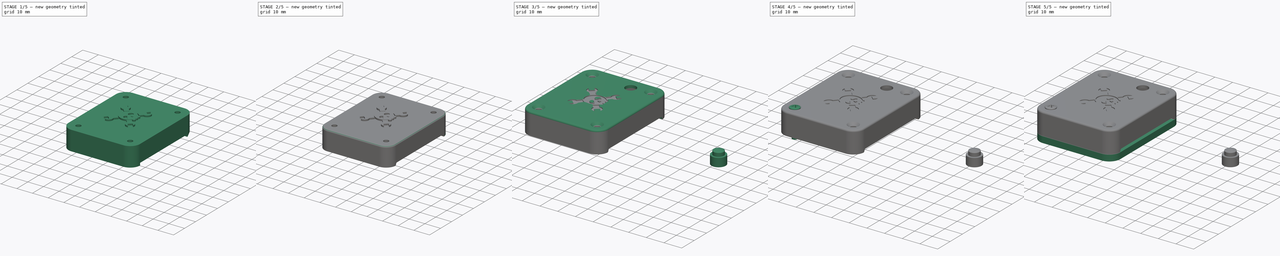
[diagram: build sequence overview — one tinted view per stage of 5, left to right]
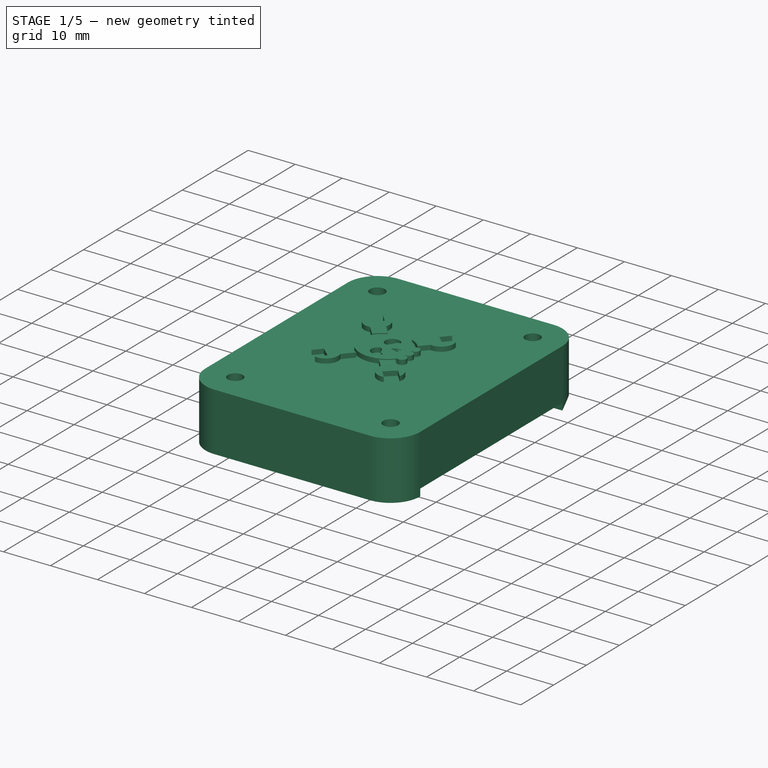
[diagram: stage 1 of 5 — iso view after this stage's code; geometry added in this stage tinted green]
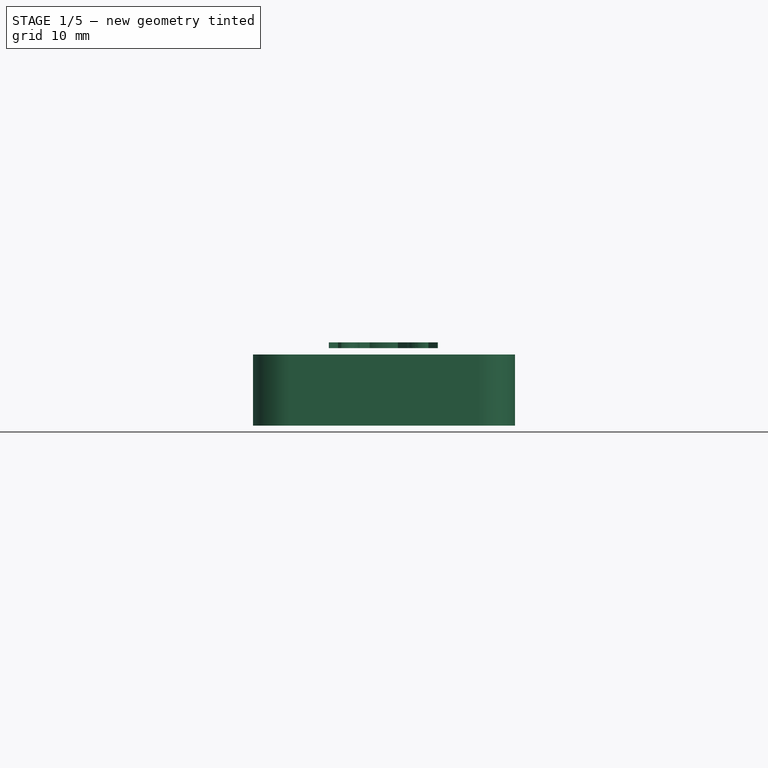
[diagram: stage 1 of 5 — front view after this stage's code; geometry added in this stage tinted green]
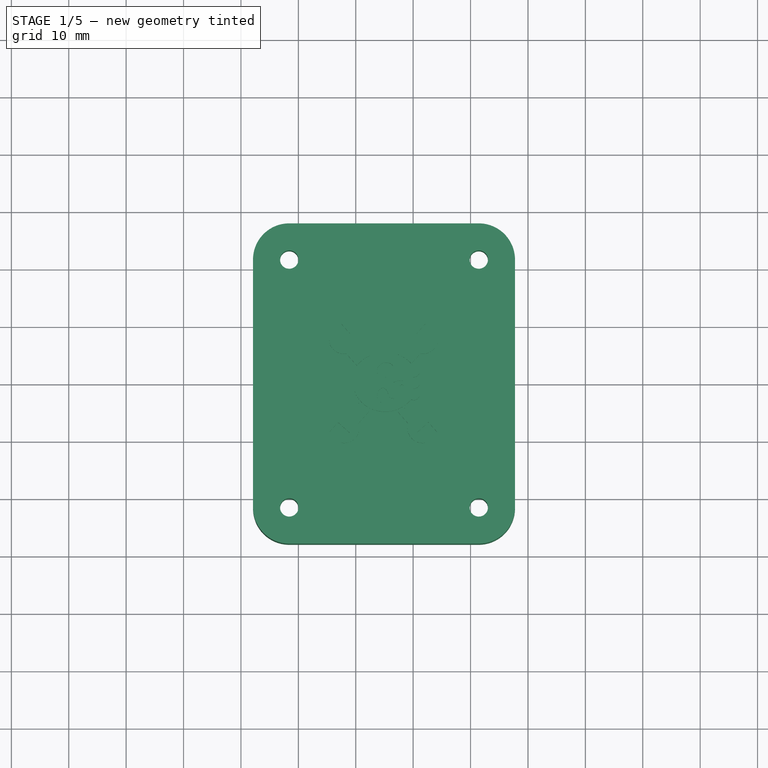
[diagram: stage 1 of 5 — top view after this stage's code; geometry added in this stage tinted green]
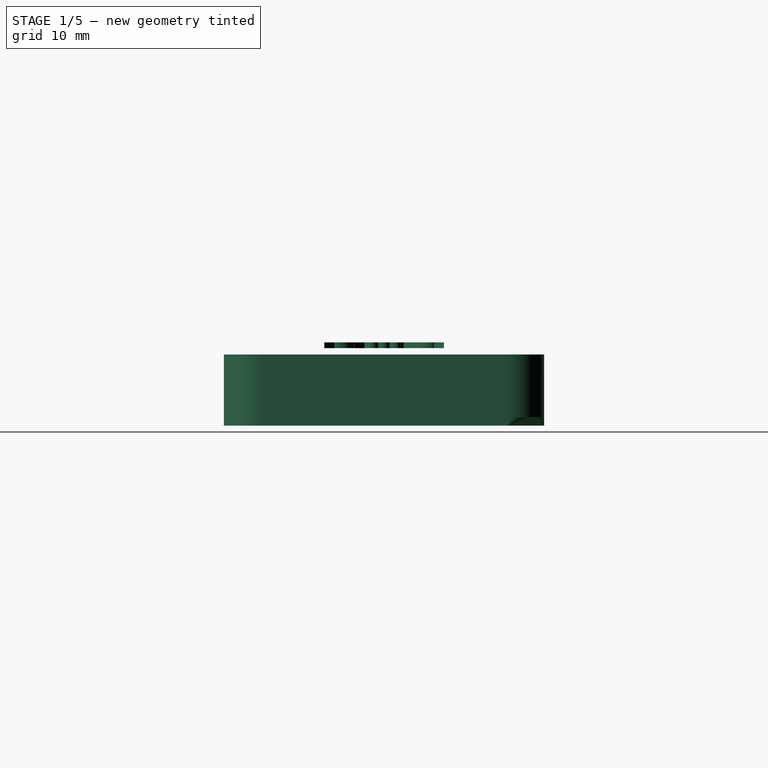
[diagram: stage 1 of 5 — right view after this stage's code; geometry added in this stage tinted green]
FCSTD DOCUMENT  (FreeCAD 0.18.4R)
Label: Tiny_Blinky
License: CreativeCommons Attribution
LicenseURL: http://creativecommons.org/licenses/by/4.0/
objects: Part::Feature×22, Sketcher::SketchObject×17, PartDesign::Body×9, PartDesign::Pad×7, PartDesign::Chamfer×6, PartDesign::FeatureBase×6, App::DocumentObjectGroupPython×6, PartDesign::Pocket×5, App::Part×4, PartDesign::ShapeBinder×3, Part::FeaturePython×2, PartDesign::CoordinateSystem×1, PartDesign::Fillet×1, App::DocumentObjectGroup×1, PartDesign::Revolution×1, Part::MultiFuse×1, Part::Extrusion×1, Part::Cut×1
note: 96 computed .brp shape members not serialized (recipe doc carries the construction recipe); baked Part::Feature solids carry a one-line shape summary decoded from their .brp

FEATURE [Sketcher::SketchObject] Sketch006
  sketch-geometry (62):
    g0: LineSegment StartX=-25.4 StartY=-8.89 StartZ=0 EndX=-25.4 EndY=-21.59 EndZ=0
    g1: ArcOfCircle CenterX=-24.13 CenterY=-8.89 CenterZ=0 NormalX=0 NormalY=0 NormalZ=1 AngleXU=0 Radius=1.27 StartAngle=1.5708 EndAngle=3.14159
    g2: ArcOfCircle CenterX=-21.59 CenterY=-21.59 CenterZ=0 NormalX=0 NormalY=0 NormalZ=1 AngleXU=0 Radius=3.81 StartAngle=3.14159 EndAngle=4.71239
    g3: LineSegment StartX=-21.59 StartY=-25.4 StartZ=0 EndX=11.43 EndY=-25.4 EndZ=0
    g4: ArcOfCircle CenterX=11.43 CenterY=-21.59 CenterZ=0 NormalX=0 NormalY=0 NormalZ=1 AngleXU=0 Radius=3.81 StartAngle=4.71239 EndAngle=6.28319
    g5: ArcOfCircle CenterX=19.05 CenterY=-21.59 CenterZ=0 NormalX=0 NormalY=0 NormalZ=1 AngleXU=0 Radius=3.81 StartAngle=1.5708 EndAngle=3.14159
    g6: LineSegment StartX=19.05 StartY=-17.78 StartZ=0 EndX=21.59 EndY=-17.78 EndZ=0
    g7: ArcOfCircle CenterX=21.59 CenterY=-13.97 CenterZ=0 NormalX=0 NormalY=0 NormalZ=1 AngleXU=0 Radius=3.81 StartAngle=4.71239 EndAngle=6.28319
    g8: LineSegment StartX=25.4 StartY=-13.97 StartZ=0 EndX=25.4 EndY=13.97 EndZ=0
    g9: ArcOfCircle CenterX=21.59 CenterY=13.97 CenterZ=0 NormalX=0 NormalY=0 NormalZ=1 AngleXU=0 Radius=3.81 StartAngle=0 EndAngle=1.5708
    g10: LineSegment StartX=21.59 StartY=17.78 StartZ=0 EndX=19.05 EndY=17.78 EndZ=0
    g11: ArcOfCircle CenterX=19.05 CenterY=21.59 CenterZ=0 NormalX=0 NormalY=0 NormalZ=1 AngleXU=0 Radius=3.81 StartAngle=3.14159 EndAngle=4.71239
    g12: ArcOfCircle CenterX=11.43 CenterY=21.59 CenterZ=0 NormalX=0 NormalY=0 NormalZ=1 AngleXU=0 Radius=3.81 StartAngle=0 EndAngle=1.5708
    g13: LineSegment StartX=11.43 StartY=25.4 StartZ=0 EndX=-21.59 EndY=25.4 EndZ=0
    g14: ArcOfCircle CenterX=-21.59 CenterY=21.59 CenterZ=0 NormalX=0 NormalY=0 NormalZ=1 AngleXU=0 Radius=3.81 StartAngle=1.5708 EndAngle=3.14159
    g15: LineSegment StartX=-25.4 StartY=21.59 StartZ=0 EndX=-25.4 EndY=8.89 EndZ=0
    g16: ArcOfCircle CenterX=-24.13 CenterY=8.89 CenterZ=0 NormalX=0 NormalY=0 NormalZ=1 AngleXU=0 Radius=1.27 StartAngle=3.14159 EndAngle=4.71239
    g17: ArcOfCircle CenterX=-24.13 CenterY=6.35 CenterZ=0 NormalX=0 NormalY=0 NormalZ=1 AngleXU=0 Radius=1.27 StartAngle=0 EndAngle=1.5708
    g18: LineSegment StartX=-22.86 StartY=6.35 StartZ=0 EndX=-22.86 EndY=-6.35 EndZ=0
    g19: ArcOfCircle CenterX=-24.13 CenterY=-6.35 CenterZ=0 NormalX=0 NormalY=0 NormalZ=1 AngleXU=0 Radius=1.27 StartAngle=4.71239 EndAngle=6.28319
    g20: Circle CenterX=-2.055 CenterY=17.78 CenterZ=0 NormalX=0 NormalY=0 NormalZ=1 AngleXU=0 Radius=0.55
    g21: Circle CenterX=-15.875 CenterY=11.9253 CenterZ=0 NormalX=0 NormalY=0 NormalZ=1 AngleXU=0 Radius=0.9525
    g22: Circle CenterX=-15.875 CenterY=-5.715 CenterZ=0 NormalX=0 NormalY=0 NormalZ=1 AngleXU=0 Radius=0.3175
    g23: Circle CenterX=-15.875 CenterY=0 CenterZ=0 NormalX=0 NormalY=0 NormalZ=1 AngleXU=0 Radius=0.3175
    g24: Circle CenterX=-15.875 CenterY=5.715 CenterZ=0 NormalX=0 NormalY=0 NormalZ=1 AngleXU=0 Radius=0.3175
    g25: Circle CenterX=-10.16 CenterY=-3e-16 CenterZ=0 NormalX=0 NormalY=0 NormalZ=1 AngleXU=0 Radius=0.3175
    g26: Circle CenterX=-10.795 CenterY=19.05 CenterZ=0 NormalX=0 NormalY=0 NormalZ=1 AngleXU=0 Radius=0.5
    g27: Circle CenterX=-8.255 CenterY=19.05 CenterZ=0 NormalX=0 NormalY=0 NormalZ=1 AngleXU=0 Radius=0.5
    g28: Circle CenterX=-5.715 CenterY=19.05 CenterZ=0 NormalX=0 NormalY=0 NormalZ=1 AngleXU=0 Radius=0.5
    g29: Circle CenterX=5.08 CenterY=3.81 CenterZ=0 NormalX=0 NormalY=0 NormalZ=1 AngleXU=0 Radius=0.4
    g30: Circle CenterX=5.08 CenterY=-3.81 CenterZ=0 NormalX=0 NormalY=0 NormalZ=1 AngleXU=0 Radius=0.4
    g31: Circle CenterX=4.445 CenterY=17.78 CenterZ=0 NormalX=0 NormalY=0 NormalZ=1 AngleXU=0 Radius=0.55
    g32: Circle CenterX=-0.635 CenterY=-3.81 CenterZ=0 NormalX=0 NormalY=0 NormalZ=1 AngleXU=0 Radius=0.4
    g33: Circle CenterX=2.54 CenterY=-3.81 CenterZ=0 NormalX=0 NormalY=0 NormalZ=1 AngleXU=0 Radius=0.4
    g34: Circle CenterX=2.54 CenterY=3.81 CenterZ=0 NormalX=0 NormalY=0 NormalZ=1 AngleXU=0 Radius=0.4
    g35: Circle CenterX=-0.635 CenterY=3.81 CenterZ=0 NormalX=0 NormalY=0 NormalZ=1 AngleXU=0 Radius=0.4
    g36: Circle CenterX=-8.255 CenterY=-19.05 CenterZ=0 NormalX=0 NormalY=0 NormalZ=1 AngleXU=0 Radius=0.5
    g37: Circle CenterX=-10.795 CenterY=-19.05 CenterZ=0 NormalX=0 NormalY=0 NormalZ=1 AngleXU=0 Radius=0.5
    g38: Circle CenterX=-15.875 CenterY=-11.9253 CenterZ=0 NormalX=0 NormalY=0 NormalZ=1 AngleXU=0 Radius=0.9525
    g39: Circle CenterX=-1.23 CenterY=-6.985 CenterZ=0 NormalX=0 NormalY=0 NormalZ=1 AngleXU=0 Radius=0.4
    g40: Circle CenterX=-5.715 CenterY=-11.47 CenterZ=0 NormalX=0 NormalY=0 NormalZ=1 AngleXU=0 Radius=0.4
    g41: Circle CenterX=-5.715 CenterY=-13.97 CenterZ=0 NormalX=0 NormalY=0 NormalZ=1 AngleXU=0 Radius=0.4
    g42: Circle CenterX=-3.175 CenterY=-19.05 CenterZ=0 NormalX=0 NormalY=0 NormalZ=1 AngleXU=0 Radius=0.5
    g43: Circle CenterX=-0.635 CenterY=-19.05 CenterZ=0 NormalX=0 NormalY=0 NormalZ=1 AngleXU=0 Radius=0.5
    g44: Circle CenterX=1.905 CenterY=-19.05 CenterZ=0 NormalX=0 NormalY=0 NormalZ=1 AngleXU=0 Radius=0.5
    g45: Circle CenterX=1.27 CenterY=-6.985 CenterZ=0 NormalX=0 NormalY=0 NormalZ=1 AngleXU=0 Radius=0.4
    g46: Circle CenterX=7.62 CenterY=-3.81 CenterZ=0 NormalX=0 NormalY=0 NormalZ=1 AngleXU=0 Radius=0.4
    g47: Circle CenterX=7.62 CenterY=3.81 CenterZ=0 NormalX=0 NormalY=0 NormalZ=1 AngleXU=0 Radius=0.4
    g48: Circle CenterX=-5.715 CenterY=21.59 CenterZ=0 NormalX=0 NormalY=0 NormalZ=1 AngleXU=0 Radius=0.5
    g49: Circle CenterX=-2.055 CenterY=22.28 CenterZ=0 NormalX=0 NormalY=0 NormalZ=1 AngleXU=0 Radius=0.55
    g50: Circle CenterX=4.445 CenterY=22.28 CenterZ=0 NormalX=0 NormalY=0 NormalZ=1 AngleXU=0 Radius=0.55
    g51: Circle CenterX=-8.255 CenterY=21.59 CenterZ=0 NormalX=0 NormalY=0 NormalZ=1 AngleXU=0 Radius=0.5
    g52: Circle CenterX=-10.795 CenterY=21.59 CenterZ=0 NormalX=0 NormalY=0 NormalZ=1 AngleXU=0 Radius=0.5
    g53: Circle CenterX=-21.59 CenterY=3e-16 CenterZ=0 NormalX=0 NormalY=0 NormalZ=1 AngleXU=0 Radius=0.3175
    g54: Circle CenterX=-21.59 CenterY=21.59 CenterZ=0 NormalX=0 NormalY=0 NormalZ=1 AngleXU=0 Radius=1.6
    g55: Circle CenterX=11.43 CenterY=21.59 CenterZ=0 NormalX=0 NormalY=0 NormalZ=1 AngleXU=0 Radius=1.6
    g56: Circle CenterX=10.16 CenterY=15.24 CenterZ=0 NormalX=0 NormalY=0 NormalZ=1 AngleXU=0 Radius=0.4
    g57: Circle CenterX=10.16 CenterY=3.81 CenterZ=0 NormalX=0 NormalY=0 NormalZ=1 AngleXU=0 Radius=0.4
    g58: Circle CenterX=10.16 CenterY=7.62 CenterZ=0 NormalX=0 NormalY=0 NormalZ=1 AngleXU=0 Radius=0.4
    g59: Circle CenterX=10.16 CenterY=-3.81 CenterZ=0 NormalX=0 NormalY=0 NormalZ=1 AngleXU=0 Radius=0.4
    g60: Circle CenterX=11.43 CenterY=-21.59 CenterZ=0 NormalX=0 NormalY=0 NormalZ=1 AngleXU=0 Radius=1.6
    g61: Circle CenterX=-21.59 CenterY=-21.59 CenterZ=0 NormalX=0 NormalY=0 NormalZ=1 AngleXU=0 Radius=1.6
FEATURE [PartDesign::ShapeBinder] ShapeBinder001
  Support = -> [Sketch006]
  TraceSupport = false
FEATURE [Sketcher::SketchObject] Sketch005
  ExternalGeometry = -> [ShapeBinder001]
  MapMode = 5
  Support = -> [XY_Plane016]
  sketch-geometry (31):
    g0: LineSegment StartX=-21.59 StartY=25.9 StartZ=0 EndX=11.43 EndY=25.9 EndZ=0
    g1: ArcOfCircle CenterX=11.43 CenterY=21.59 CenterZ=0 NormalX=0 NormalY=0 NormalZ=1 AngleXU=0 Radius=4.31 StartAngle=4.02074e-08 EndAngle=1.5708
    g2: LineSegment StartX=15.74 StartY=21.59 StartZ=0 EndX=15.74 EndY=-21.59 EndZ=0
    g3: ArcOfCircle CenterX=11.43 CenterY=-21.59 CenterZ=0 NormalX=0 NormalY=0 NormalZ=1 AngleXU=0 Radius=4.31 StartAngle=4.71239 EndAngle=6.28319
    g4: LineSegment StartX=11.43 StartY=-25.9 StartZ=0 EndX=-21.59 EndY=-25.9 EndZ=0
    g5: ArcOfCircle CenterX=-21.59 CenterY=-21.59 CenterZ=0 NormalX=0 NormalY=0 NormalZ=1 AngleXU=0 Radius=4.31 StartAngle=3.14159 EndAngle=4.71239
    g6: LineSegment StartX=-25.9 StartY=-21.59 StartZ=0 EndX=-25.9 EndY=-8.89 EndZ=0
    g7: ArcOfCircle [constr] CenterX=-24.13 CenterY=-8.89 CenterZ=0 NormalX=0 NormalY=0 NormalZ=1 AngleXU=0 Radius=1.77 StartAngle=1.5708 EndAngle=3.14159
    g8: ArcOfCircle [constr] CenterX=-24.13 CenterY=-6.35 CenterZ=0 NormalX=0 NormalY=0 NormalZ=1 AngleXU=0 Radius=0.77 StartAngle=4.71239 EndAngle=6.28319
    g9: LineSegment [constr] StartX=-23.36 StartY=-6.35 StartZ=0 EndX=-23.36 EndY=6.35 EndZ=0
    g10: ArcOfCircle [constr] CenterX=-24.13 CenterY=6.35 CenterZ=0 NormalX=0 NormalY=0 NormalZ=1 AngleXU=0 Radius=0.77 StartAngle=2e-16 EndAngle=1.5708
    g11: ArcOfCircle [constr] CenterX=-24.13 CenterY=8.89 CenterZ=0 NormalX=0 NormalY=0 NormalZ=1 AngleXU=0 Radius=1.77 StartAngle=3.14159 EndAngle=4.71239
    g12: LineSegment StartX=-25.9 StartY=8.89 StartZ=0 EndX=-25.9 EndY=21.59 EndZ=0
    g13: ArcOfCircle CenterX=-21.59 CenterY=21.59 CenterZ=0 NormalX=0 NormalY=0 NormalZ=1 AngleXU=0 Radius=4.31 StartAngle=1.5708 EndAngle=3.14159
    g14: LineSegment [constr] StartX=-21.59 StartY=25.9 StartZ=0 EndX=-21.59 EndY=25.4 EndZ=0
    g15: LineSegment StartX=-21.59 StartY=27.9 StartZ=0 EndX=11.43 EndY=27.9 EndZ=0
    g16: ArcOfCircle CenterX=11.43 CenterY=21.59 CenterZ=0 NormalX=0 NormalY=0 NormalZ=1 AngleXU=0 Radius=6.31 StartAngle=2.74634e-08 EndAngle=1.5708
    g17: LineSegment StartX=17.74 StartY=21.59 StartZ=0 EndX=17.74 EndY=-21.59 EndZ=0
    g18: ArcOfCircle CenterX=11.43 CenterY=-21.59 CenterZ=0 NormalX=0 NormalY=0 NormalZ=1 AngleXU=0 Radius=6.31 StartAngle=4.71239 EndAngle=6.28319
    g19: LineSegment StartX=11.43 StartY=-27.9 StartZ=0 EndX=-21.59 EndY=-27.9 EndZ=0
    g20: ArcOfCircle CenterX=-21.59 CenterY=-21.59 CenterZ=0 NormalX=0 NormalY=0 NormalZ=1 AngleXU=0 Radius=6.31 StartAngle=3.14159 EndAngle=4.71239
    g21: LineSegment StartX=-27.9 StartY=-21.59 StartZ=0 EndX=-27.9 EndY=-8.89 EndZ=0
    g22: ArcOfCircle [constr] CenterX=-24.13 CenterY=-8.89 CenterZ=0 NormalX=0 NormalY=0 NormalZ=1 AngleXU=0 Radius=3.77 StartAngle=1.90314 EndAngle=3.14159
    g23: LineSegment [constr] StartX=-25.36 StartY=-5.32629 StartZ=0 EndX=-25.36 EndY=5.32629 EndZ=0
    g24: ArcOfCircle [constr] CenterX=-24.13 CenterY=8.89 CenterZ=0 NormalX=0 NormalY=0 NormalZ=1 AngleXU=0 Radius=3.77 StartAngle=3.14159 EndAngle=4.38004
    g25: LineSegment StartX=-27.9 StartY=8.89 StartZ=0 EndX=-27.9 EndY=21.59 EndZ=0
    g26: ArcOfCircle CenterX=-21.59 CenterY=21.59 CenterZ=0 NormalX=0 NormalY=0 NormalZ=1 AngleXU=0 Radius=6.31 StartAngle=1.5708 EndAngle=3.14159
    g27: LineSegment [constr] StartX=-21.59 StartY=25.9 StartZ=0 EndX=-21.59 EndY=27.9 EndZ=0
    g28: LineSegment [constr] StartX=-25.36 StartY=5.32629 StartZ=0 EndX=-23.36 EndY=5.32629 EndZ=0
    g29: LineSegment StartX=-27.9 StartY=8.89 StartZ=0 EndX=-27.9 EndY=-8.89 EndZ=0
    g30: LineSegment StartX=-25.9 StartY=8.89 StartZ=0 EndX=-25.9 EndY=-8.89 EndZ=0
  constraints (76):
    c: Horizontal(g0)
    c: Tangent(g0,g1) = 1.5708
    c: Coincident(g1,g2)
    c: Vertical(g2)
    c: Tangent(g2,g3) = 1.5708
    c: Coincident(g3,g4)
    c: Horizontal(g4)
    c: Tangent(g4,g5) = 1.5708
    c: Vertical(g6)
    c: Tangent(g6,g7) = 1.5708
    c: Tangent(g7,g8) = 1.5708
    c: Coincident(g8,g9)
    c: Vertical(g9)
    c: Tangent(g9,g10) = -1.5708
    c: Tangent(g10,g11) = 1.5708
    c: Coincident(g11,g12)
    c: Vertical(g12)
    c: Tangent(g12,g13) = 1.5708
    c: Coincident(g13,g0)
    c: Coincident(g13,g-3)
    c: Coincident(g1,g-4)
    c: Coincident(g3,g-5)
    c: Coincident(g5,g-6)
    c: Coincident(g5,g6)
    c: Coincident(g7,g-10)
    c: Coincident(g-9,g8)
    c: Coincident(g-8,g10)
    c: Coincident(g11,g-7)
    c: Coincident(g14,g0)
    c: Coincident(g14,g-3)
    c: Equal(g0,g-11)
    c: Equal(g12,g-12)
    c: Equal(g9,g-15)
    c: Equal(g6,g-14)
    c: Equal(g-13,g4)
    c: DistanceY(g14,g14) = 0.5
    c: Horizontal(g15)
    c: Tangent(g15,g16) = 1.5708
    c: Coincident(g16,g17)
    c: Vertical(g17)
    c: Tangent(g17,g18) = 1.5708
    c: Coincident(g18,g19)
    c: Horizontal(g19)
    c: Tangent(g19,g20) = 1.5708
    c: Coincident(g20,g21)
    c: Vertical(g21)
    c: Tangent(g21,g22) = 1.5708
    c: Coincident(g22,g23)
    c: Vertical(g23)
    c: Coincident(g24,g25)
    c: Vertical(g25)
    c: Tangent(g25,g26) = 1.5708
    c: Coincident(g26,g15)
    c: Coincident(g13,g26)
    c: Coincident(g1,g16)
    c: Coincident(g3,g18)
    c: Coincident(g5,g20)
    c: Coincident(g22,g7)
    c: Coincident(g24,g11)
    c: Equal(g0,g15)
    c: Equal(g2,g17)
    c: Equal(g19,g4)
    c: Equal(g21,g6)
    c: Equal(g25,g12)
    c: Coincident(g23,g24)
    c: Coincident(g27,g0)
    c: Coincident(g27,g15)
    c: DistanceY(g27,g27) = 2
    c: Coincident(g28,g23)
    c: PointOnObject(g28,g9)
    c: Horizontal(g28)
    c: Equal(g28,g27)
    c: Coincident(g29,g25)
    c: Coincident(g29,g21)
    c: Coincident(g30,g6)
    c: Coincident(g12,g30)
FEATURE [PartDesign::Pad] Pad003
  Length = 9.4
  Length2 = 100
  Profile = -> Sketch005
  Refine = true
  Type = 0
FEATURE [Sketcher::SketchObject] Sketch007
  ExternalGeometry = -> [Pad003]
  MapMode = 5
  Placement = pos=(0,0,9.4) rot=(0,0,1;0rad)
  Support = -> [Pad003]
  sketch-geometry (8):
    g0: LineSegment StartX=-21.59 StartY=27.9 StartZ=0 EndX=11.43 EndY=27.9 EndZ=0
    g1: ArcOfCircle CenterX=11.43 CenterY=21.59 CenterZ=0 NormalX=0 NormalY=0 NormalZ=1 AngleXU=0 Radius=6.31 StartAngle=2.74634e-08 EndAngle=1.5708
    g2: LineSegment StartX=17.74 StartY=21.59 StartZ=0 EndX=17.74 EndY=-21.59 EndZ=0
    g3: ArcOfCircle CenterX=11.43 CenterY=-21.59 CenterZ=0 NormalX=0 NormalY=0 NormalZ=1 AngleXU=0 Radius=6.31 StartAngle=4.71239 EndAngle=6.28319
    g4: LineSegment StartX=11.43 StartY=-27.9 StartZ=0 EndX=-21.59 EndY=-27.9 EndZ=0
    g5: ArcOfCircle CenterX=-21.59 CenterY=-21.59 CenterZ=0 NormalX=0 NormalY=0 NormalZ=1 AngleXU=0 Radius=6.31 StartAngle=3.14159 EndAngle=4.71239
    g6: LineSegment StartX=-27.9 StartY=-21.59 StartZ=0 EndX=-27.9 EndY=21.59 EndZ=0
    g7: ArcOfCircle CenterX=-21.59 CenterY=21.59 CenterZ=0 NormalX=0 NormalY=0 NormalZ=1 AngleXU=0 Radius=6.31 StartAngle=1.5708 EndAngle=3.14159
  constraints (17):
    c: Coincident(g-3,g0)
    c: Coincident(g0,g-4)
    c: Tangent(g0,g1) = 1.5708
    c: Coincident(g1,g-4)
    c: Coincident(g1,g2)
    c: Coincident(g2,g-5)
    c: Tangent(g2,g3) = 1.5708
    c: Coincident(g3,g-5)
    c: Coincident(g3,g4)
    c: Coincident(g4,g-6)
    c: Tangent(g4,g5) = 1.5708
    c: Coincident(g5,g-6)
    c: Coincident(g5,g6)
    c: Coincident(g6,g-3)
    c: Coincident(g7,g-3)
    c: Coincident(g7,g6)
    c: Coincident(g7,g0)
FEATURE [PartDesign::Pad] Pad004
  BaseFeature = -> Pad003
  Length = 1.5
  Length2 = 100
  Profile = -> Sketch007
  Refine = true
  Type = 0
FEATURE [Sketcher::SketchObject] Sketch008
  ExternalGeometry = -> [ShapeBinder001]
  MapMode = 5
  Placement = pos=(0,0,10.9) rot=(0,0,1;0rad)
  Support = -> [Pad004]
  sketch-geometry (4):
    g0: Circle CenterX=-21.59 CenterY=21.59 CenterZ=0 NormalX=0 NormalY=0 NormalZ=1 AngleXU=0 Radius=1.6
    g1: Circle CenterX=11.43 CenterY=21.59 CenterZ=0 NormalX=0 NormalY=0 NormalZ=1 AngleXU=0 Radius=1.6
    g2: Circle CenterX=11.43 CenterY=-21.59 CenterZ=0 NormalX=0 NormalY=0 NormalZ=1 AngleXU=0 Radius=1.6
    g3: Circle CenterX=-21.59 CenterY=-21.59 CenterZ=0 NormalX=0 NormalY=0 NormalZ=1 AngleXU=0 Radius=1.6
  constraints (8):
    c: Coincident(g0,g-3)
    c: Equal(g0,g-3)
    c: Coincident(g1,g-4)
    c: Equal(g1,g-4)
    c: Coincident(g2,g-5)
    c: Equal(g-5,g2)
    c: Coincident(g-6,g3)
    c: Equal(g3,g-6)
FEATURE [PartDesign::Pocket] Pocket001
  BaseFeature = -> Pad004
  Length = 5
  Length2 = 100
  Profile = -> Sketch008
  Refine = true
  Type = 1
FEATURE [Sketcher::SketchObject] Sketch009
  ExternalGeometry = -> [Pocket001,ShapeBinder001]
  MapMode = 5
  Placement = pos=(0,0,9.4) rot=(1,0,0;3.14159rad)
  Support = -> [Pocket001]
  sketch-geometry (12):
    g0: Circle CenterX=11.43 CenterY=21.59 CenterZ=0 NormalX=0 NormalY=0 NormalZ=1 AngleXU=0 Radius=3.6
    g1: Circle CenterX=11.43 CenterY=21.59 CenterZ=0 NormalX=0 NormalY=0 NormalZ=1 AngleXU=0 Radius=1.6
    g2: LineSegment [constr] StartX=9.83 StartY=21.59 StartZ=0 EndX=7.83 EndY=21.59 EndZ=0
    g3: Circle CenterX=-21.59 CenterY=21.59 CenterZ=0 NormalX=0 NormalY=0 NormalZ=1 AngleXU=0 Radius=3.6
    g4: LineSegment [constr] StartX=-23.19 StartY=21.59 StartZ=0 EndX=-25.19 EndY=21.59 EndZ=0
    g5: Circle CenterX=-21.59 CenterY=21.59 CenterZ=0 NormalX=0 NormalY=0 NormalZ=1 AngleXU=0 Radius=1.6
    g6: Circle CenterX=11.43 CenterY=-21.59 CenterZ=0 NormalX=0 NormalY=0 NormalZ=1 AngleXU=0 Radius=3.6
    g7: LineSegment [constr] StartX=9.83 StartY=-21.59 StartZ=0 EndX=7.83 EndY=-21.59 EndZ=0
    g8: Circle CenterX=11.43 CenterY=-21.59 CenterZ=0 NormalX=0 NormalY=0 NormalZ=1 AngleXU=0 Radius=1.6
    g9: Circle CenterX=-21.59 CenterY=-21.59 CenterZ=0 NormalX=0 NormalY=0 NormalZ=1 AngleXU=0 Radius=3.6
    g10: LineSegment [constr] StartX=-23.19 StartY=-21.59 StartZ=0 EndX=-25.19 EndY=-21.59 EndZ=0
    g11: Circle CenterX=-21.59 CenterY=-21.59 CenterZ=0 NormalX=0 NormalY=0 NormalZ=1 AngleXU=0 Radius=1.6
  constraints (33):
    c: Coincident(g0,g1)
    c: Coincident(g0,g-6)
    c: Equal(g1,g-6)
    c: PointOnObject(g2,g1)
    c: PointOnObject(g2,g0)
    c: Horizontal(g2)
    c: Perpendicular(g1,g2)
    c: DistanceX(g2,g2) = 2
    c: Coincident(g3,g5)
    c: PointOnObject(g4,g5)
    c: PointOnObject(g4,g3)
    c: Horizontal(g4)
    c: Perpendicular(g5,g4)
    c: Equal(g2,g4) = 2
    c: Coincident(g6,g8)
    c: PointOnObject(g7,g8)
    c: PointOnObject(g7,g6)
    c: Horizontal(g7)
    c: Perpendicular(g8,g7)
    c: Equal(g2,g7) = 2
    c: Coincident(g9,g11)
    c: PointOnObject(g10,g11)
    c: PointOnObject(g10,g9)
    c: Horizontal(g10)
    c: Perpendicular(g11,g10)
    c: Equal(g2,g10) = 2
    c: Coincident(g4,g-5)
    c: Coincident(g3,g-5)
    c: Equal(g-5,g5)
    c: Coincident(g9,g-3)
    c: Equal(g11,g-3)
    c: Equal(g8,g-4)
    c: Coincident(g6,g-4)
FEATURE [PartDesign::Pad] Pad005
  BaseFeature = -> Pocket001
  Length = 9.4
  Length2 = 100
  Profile = -> Sketch009
  Refine = true
  Type = 0
FEATURE [PartDesign::CoordinateSystem] Local_CS_4d99
  AttacherType = Attacher::AttachEngine3D
FEATURE [Part::Feature] Pcb_4d99
  shape: bbox 50.8 x 50.8 x 1.6 mm, 64 faces (baked)
FEATURE [Sketcher::SketchObject] PCB_Sketch_4d99
  sketch-geometry (20):
    g0: LineSegment StartX=85.09 StartY=-55.88 StartZ=0 EndX=82.55 EndY=-55.88 EndZ=0
    g1: LineSegment StartX=85.09 StartY=-20.32 StartZ=0 EndX=82.55 EndY=-20.32 EndZ=0
    g2: LineSegment StartX=38.1 StartY=-29.21 StartZ=0 EndX=38.1 EndY=-16.51 EndZ=0
    g3: LineSegment StartX=40.64 StartY=-31.75 StartZ=0 EndX=40.64 EndY=-44.45 EndZ=0
    g4: LineSegment StartX=74.93 StartY=-63.5 StartZ=0 EndX=41.91 EndY=-63.5 EndZ=0
    g5: LineSegment StartX=88.9 StartY=-24.13 StartZ=0 EndX=88.9 EndY=-52.07 EndZ=0
    g6: LineSegment StartX=41.91 StartY=-12.7 StartZ=0 EndX=74.93 EndY=-12.7 EndZ=0
    g7: LineSegment StartX=38.1 StartY=-59.69 StartZ=0 EndX=38.1 EndY=-46.99 EndZ=0
    g8: ArcOfCircle CenterX=85.09 CenterY=-52.07 CenterZ=0 NormalX=0 NormalY=0 NormalZ=1 AngleXU=0 Radius=3.81 StartAngle=4.71239 EndAngle=6.28319
    g9: ArcOfCircle CenterX=82.55 CenterY=-59.69 CenterZ=0 NormalX=0 NormalY=0 NormalZ=1 AngleXU=0 Radius=3.81 StartAngle=1.5708 EndAngle=3.14159
    g10: ArcOfCircle CenterX=85.09 CenterY=-24.13 CenterZ=0 NormalX=0 NormalY=0 NormalZ=1 AngleXU=0 Radius=3.81 StartAngle=0 EndAngle=1.5708
    g11: ArcOfCircle CenterX=82.55 CenterY=-16.51 CenterZ=0 NormalX=0 NormalY=0 NormalZ=1 AngleXU=0 Radius=3.81 StartAngle=3.14159 EndAngle=4.71239
    g12: ArcOfCircle CenterX=39.37 CenterY=-29.21 CenterZ=0 NormalX=0 NormalY=0 NormalZ=1 AngleXU=0 Radius=1.27 StartAngle=3.14159 EndAngle=4.71239
    g13: ArcOfCircle CenterX=39.37 CenterY=-31.75 CenterZ=0 NormalX=0 NormalY=0 NormalZ=1 AngleXU=0 Radius=1.27 StartAngle=0 EndAngle=1.5708
    g14: ArcOfCircle CenterX=39.37 CenterY=-46.99 CenterZ=0 NormalX=0 NormalY=0 NormalZ=1 AngleXU=0 Radius=1.27 StartAngle=1.5708 EndAngle=3.14159
    g15: ArcOfCircle CenterX=39.37 CenterY=-44.45 CenterZ=0 NormalX=0 NormalY=0 NormalZ=1 AngleXU=0 Radius=1.27 StartAngle=4.71239 EndAngle=6.28319
    g16: ArcOfCircle CenterX=74.93 CenterY=-59.69 CenterZ=0 NormalX=0 NormalY=0 NormalZ=1 AngleXU=0 Radius=3.81 StartAngle=4.71239 EndAngle=6.28319
    g17: ArcOfCircle CenterX=41.91 CenterY=-59.69 CenterZ=0 NormalX=0 NormalY=0 NormalZ=1 AngleXU=0 Radius=3.81 StartAngle=3.14159 EndAngle=4.71239
    g18: ArcOfCircle CenterX=41.91 CenterY=-16.51 CenterZ=0 NormalX=0 NormalY=0 NormalZ=1 AngleXU=0 Radius=3.81 StartAngle=1.5708 EndAngle=3.14159
    g19: ArcOfCircle CenterX=74.93 CenterY=-16.51 CenterZ=0 NormalX=0 NormalY=0 NormalZ=1 AngleXU=0 Radius=3.81 StartAngle=0 EndAngle=1.5708
  constraints (39):
    c: Horizontal(g0)
    c: Horizontal(g1)
    c: Vertical(g2)
    c: Vertical(g3)
    c: Horizontal(g4)
    c: Vertical(g5)
    c: Horizontal(g6)
    c: Vertical(g7)
    c: Tangent(g17,g7) = 1.5708
    c: Tangent(g14,g7) = 1.5708
    c: Tangent(g12,g2) = 1.5708
    c: Tangent(g18,g2) = 1.5708
    c: Tangent(g14,g15) = 1.5708
    c: Tangent(g13,g12) = 1.5708
    c: Tangent(g3,g15) = 1.5708
    c: Tangent(g3,g13) = 1.5708
    c: Tangent(g17,g4) = 1.5708
    c: Tangent(g6,g18) = 1.5708
    c: Tangent(g4,g16) = 1.5708
    c: Tangent(g6,g19) = 1.5708
    c: Tangent(g9,g16) = 1.5708
    c: Tangent(g19,g11) = 1.5708
    c: Tangent(g0,g9) = -1.5708
    c: Tangent(g11,g1) = 1.5708
    c: Tangent(g8,g0) = 1.5708
    c: Tangent(g10,g1) = -1.5708
    c: Tangent(g8,g5) = 1.5708
    c: Tangent(g10,g5) = 1.5708
    c: Equal(g0,g1)
    c: Equal(g2,g3)
    c: Equal(g2,g7)
    c: Equal(g4,g6)
    c: Equal(g12,g13)
    c: Equal(g12,g14)
    c: Equal(g12,g15)
    c: Equal(g8,g9)
    c: Equal(g8,g10)
    c: Equal(g8,g11)
    c: Equal(g8, g16-g19) x4
FEATURE [App::Part] Board_Geoms_4d99
  Group = -> [Local_CS_4d99,Pcb_4d99,PCB_Sketch_4d99]
  Origin = -> Origin017
FEATURE [Part::Feature] Shape  label="SW1_SW_PUSH_6mm_h5mm_5EE447BF"
  Placement = pos=(67.945,-20.32,0) rot=(0,0,1;3.14159rad)
  shape: bbox 7.174 x 6 x 8.5 mm, 105 faces (baked)
FEATURE [Part::Feature] Shape001  label="J3_PinHeader_2x03_P254mm_Vertical_5EE44778"
  Placement = pos=(57.785,-16.51,0) rot=(0,0,-1;1.5708rad)
  shape: bbox 7.62 x 5.08 x 11.54 mm, 130 faces (baked)
FEATURE [Part::Feature] Shape002  label="BT1_3024-2_sp_5EE44626"
  Placement = pos=(47.625,-38.1,0) rot=(0,0,1;1.5708rad)
  shape: bbox 22.53 x 34.01 x 7.751 mm, 149 faces (baked)
FEATURE [Part::Feature] Shape003  label="J1_PinHeader_1x02_P254mm_Vertical_5EE4474D"
  Placement = pos=(55.245,-57.15,0) rot=(0,0,-1;1.5708rad)
  shape: bbox 5.08 x 2.54 x 11.54 mm, 52 faces (baked)
FEATURE [Part::Feature] Shape004  label="C1_CP_Radial_D50mm_P250mm_5EE44658"
  Placement = pos=(57.785,-52.07,0) rot=(0,0,1;1.5708rad)
  shape: bbox 6.515 x 6.128 x 7 mm, 49 faces (baked)
FEATURE [Part::Feature] Shape005  label="C2_C_Disc_D30mm_W20mm_P250mm_5EE446DB"
  Placement = pos=(64.77,-45.085,0) rot=(0,0,1;3.14159rad)
  shape: bbox 3 x 2 x 5.1 mm, 12 faces (baked)
FEATURE [Part::Feature] Shape006  label="D1_LED_WS2812B_PLCC4_50x50mm_P32mm_5EE446EF"
  Placement = pos=(84.836,-25.4,0) rot=(0,0,1;1.5708rad)
  shape: bbox 5 x 5.4 x 1.6 mm, 68 faces (baked)
FEATURE [Part::Feature] Shape007  label="D2_LED_WS2812B_PLCC4_50x50mm_P32mm_5EE44705"
  Placement = pos=(84.836,-38.1,0) rot=(0,0,1;1.5708rad)
  shape: bbox 5 x 5.4 x 1.6 mm, 68 faces (baked)
FEATURE [Part::Feature] Shape008  label="D3_LED_WS2812B_PLCC4_50x50mm_P32mm_5EE4471B"
  Placement = pos=(84.836,-50.8,0) rot=(0,0,1;1.5708rad)
  shape: bbox 5 x 5.4 x 1.6 mm, 68 faces (baked)
FEATURE [Part::Feature] Shape009  label="J2_PinHeader_1x03_P254mm_Vertical_5EE44762"
  Placement = pos=(65.405,-57.15,0) rot=(0,0,-1;1.5708rad)
  shape: bbox 7.62 x 2.54 x 11.54 mm, 76 faces (baked)
FEATURE [Part::Feature] Shape010  label="R1_R_Axial_DIN0207_L63mm_D25mm_P762mm_Horizontal_5EE44793"
  Placement = pos=(73.66,-22.86,0) rot=(0,0,-1;1.5708rad)
  shape: bbox 2.706 x 8.418 x 5.603 mm, 15 faces (baked)
FEATURE [Part::Feature] Shape011  label="R2_R_Axial_DIN0207_L63mm_D25mm_P762mm_Horizontal_5EE447A9"
  Placement = pos=(62.865,-41.91,0) rot=(0,0,1;1.5708rad)
  shape: bbox 2.706 x 8.418 x 5.603 mm, 15 faces (baked)
FEATURE [Part::Feature] Shape012  label="U1_SOT_223_5EE45BAE"
  Placement = pos=(65.405,-50.8,0) rot=(0,0,1;0rad)
  shape: bbox 7 x 6.5 x 1.7 mm, 78 faces (baked)
FEATURE [Part::Feature] Shape013  label="U2_DIP-8_W7.62mm001_5EE447F2"
  Placement = pos=(66.04,-41.91,0) rot=(0,0,1;1.5708rad)
  shape: bbox 9.27 x 7.874 x 6.98 mm, 148 faces (baked)
FEATURE [App::Part] Top_4d99
  Group = -> [Shape,Shape001,Shape002,Shape003,Shape004,Shape005,Shape006,Shape007,Shape008,Shape009,Shape010,Shape011,Shape012,Shape013]
  Origin = -> Origin020
FEATURE [App::Part] Step_Models_4d99
  Group = -> [Top_4d99]
  Origin = -> Origin019
FEATURE [App::Part] Board_4d99  label="Tiny_Blinky_KSU"
  Group = -> [Board_Geoms_4d99,Step_Models_4d99]
  Origin = -> Origin018
  Placement = pos=(-63.5,38.1,1.6) rot=(0,0,1;0rad)
FEATURE [Sketcher::SketchObject] Sketch010
  ExternalGeometry = -> [Pad005]
  MapMode = 5
  Placement = pos=(0,0,0) rot=(1,0,0;3.14159rad)
  Support = -> [Pad005]
  sketch-geometry (16):
    g0: LineSegment StartX=11.43 StartY=25.9 StartZ=0 EndX=-21.59 EndY=25.9 EndZ=0
    g1: ArcOfCircle CenterX=-21.59 CenterY=21.59 CenterZ=0 NormalX=0 NormalY=0 NormalZ=1 AngleXU=0 Radius=4.31 StartAngle=1.5708 EndAngle=3.14159
    g2: LineSegment StartX=-25.9 StartY=21.59 StartZ=0 EndX=-25.9 EndY=-21.59 EndZ=0
    g3: ArcOfCircle CenterX=-21.59 CenterY=-21.59 CenterZ=0 NormalX=0 NormalY=0 NormalZ=1 AngleXU=0 Radius=4.31 StartAngle=3.14159 EndAngle=4.71239
    g4: LineSegment StartX=-21.59 StartY=-25.9 StartZ=0 EndX=11.43 EndY=-25.9 EndZ=0
    g5: ArcOfCircle CenterX=11.43 CenterY=-21.59 CenterZ=0 NormalX=0 NormalY=0 NormalZ=1 AngleXU=0 Radius=4.31 StartAngle=4.71239 EndAngle=6.28319
    g6: LineSegment StartX=15.74 StartY=-21.59 StartZ=0 EndX=17.74 EndY=-21.59 EndZ=0
    g7: ArcOfCircle CenterX=11.43 CenterY=-21.59 CenterZ=0 NormalX=0 NormalY=0 NormalZ=1 AngleXU=0 Radius=6.31 StartAngle=4.71239 EndAngle=6.28319
    g8: LineSegment StartX=11.43 StartY=-27.9 StartZ=0 EndX=-21.59 EndY=-27.9 EndZ=0
    g9: ArcOfCircle CenterX=-21.59 CenterY=-21.59 CenterZ=0 NormalX=0 NormalY=0 NormalZ=1 AngleXU=0 Radius=6.31 StartAngle=3.14159 EndAngle=4.71239
    g10: LineSegment StartX=-27.9 StartY=-21.59 StartZ=0 EndX=-27.9 EndY=21.59 EndZ=0
    g11: ArcOfCircle CenterX=-21.59 CenterY=21.59 CenterZ=0 NormalX=0 NormalY=0 NormalZ=1 AngleXU=0 Radius=6.31 StartAngle=1.5708 EndAngle=3.14159
    g12: LineSegment StartX=-21.59 StartY=27.9 StartZ=0 EndX=11.43 EndY=27.9 EndZ=0
    g13: ArcOfCircle CenterX=11.43 CenterY=21.59 CenterZ=0 NormalX=0 NormalY=0 NormalZ=1 AngleXU=0 Radius=6.31 StartAngle=3.61e-14 EndAngle=1.5708
    g14: ArcOfCircle CenterX=11.43 CenterY=21.59 CenterZ=0 NormalX=0 NormalY=0 NormalZ=1 AngleXU=0 Radius=4.31 StartAngle=5.28e-14 EndAngle=1.5708
    g15: LineSegment StartX=15.74 StartY=21.59 StartZ=0 EndX=17.74 EndY=21.59 EndZ=0
  constraints (32):
    c: Coincident(g-3,g0)
    c: Coincident(g0,g-5)
    c: Tangent(g0,g1) = -1.5708
    c: Coincident(g2,g-7)
    c: Tangent(g2,g3) = -1.5708
    c: Coincident(g4,g-9)
    c: Tangent(g4,g5) = -1.5708
    c: Coincident(g5,g-9)
    c: Coincident(g5,g6)
    c: Coincident(g6,g-8)
    c: Perpendicular(g6,g7) = 1.5708
    c: Coincident(g8,g-6)
    c: Tangent(g8,g9) = 1.5708
    c: Coincident(g10,g-4)
    c: Tangent(g10,g11) = 1.5708
    c: Tangent(g11,g12) = 1.5708
    c: Tangent(g1,g2) = -1.5708
    c: Tangent(g9,g10) = 1.5708
    c: Tangent(g3,g4) = -1.5708
    c: Tangent(g7,g8) = 1.5708
    c: Coincident(g3,g-7)
    c: Coincident(g9,g-6)
    c: Coincident(g11,g-4)
    c: Coincident(g12,g-10)
    c: Coincident(g13,g-10)
    c: Coincident(g13,g-10)
    c: Coincident(g12,g13)
    c: Coincident(g14,g13)
    c: Coincident(g14,g-3)
    c: Coincident(g14,g0)
    c: Coincident(g15,g14)
    c: Coincident(g15,g13)
FEATURE [PartDesign::Pad] Pad006
  BaseFeature = -> Pad005
  Length = 1.5
  Length2 = 100
  Profile = -> Sketch010
  Refine = true
  Type = 0
FEATURE [Sketcher::SketchObject] Sketch015
  Placement = pos=(-19,-11.1,13) rot=(0,0,1;1.5708rad)
  sketch-geometry (100):
    g0: BSplineCurve PolesCount=4 KnotsCount=2 Degree=3 IsPeriodic=0
    g1: BSplineCurve PolesCount=2 KnotsCount=2 Degree=1 IsPeriodic=0
    g2: BSplineCurve PolesCount=2 KnotsCount=2 Degree=1 IsPeriodic=0
    g3: BSplineCurve PolesCount=2 KnotsCount=2 Degree=1 IsPeriodic=0
    g4: BSplineCurve PolesCount=4 KnotsCount=2 Degree=3 IsPeriodic=0
    g5: BSplineCurve PolesCount=4 KnotsCount=2 Degree=3 IsPeriodic=0
    g6: BSplineCurve PolesCount=4 KnotsCount=2 Degree=3 IsPeriodic=0
    g7: BSplineCurve PolesCount=2 KnotsCount=2 Degree=1 IsPeriodic=0
    g8: BSplineCurve PolesCount=4 KnotsCount=2 Degree=3 IsPeriodic=0
    g9: BSplineCurve PolesCount=2 KnotsCount=2 Degree=1 IsPeriodic=0
    g10: BSplineCurve PolesCount=4 KnotsCount=2 Degree=3 IsPeriodic=0
    g11: BSplineCurve PolesCount=2 KnotsCount=2 Degree=1 IsPeriodic=0
    g12: BSplineCurve PolesCount=4 KnotsCount=2 Degree=3 IsPeriodic=0
    g13: BSplineCurve PolesCount=4 KnotsCount=2 Degree=3 IsPeriodic=0
    g14: BSplineCurve PolesCount=2 KnotsCount=2 Degree=1 IsPeriodic=0
    g15: BSplineCurve PolesCount=4 KnotsCount=2 Degree=3 IsPeriodic=0
    g16: BSplineCurve PolesCount=4 KnotsCount=2 Degree=3 IsPeriodic=0
    g17: BSplineCurve PolesCount=4 KnotsCount=2 Degree=3 IsPeriodic=0
    g18: BSplineCurve PolesCount=2 KnotsCount=2 Degree=1 IsPeriodic=0
    g19: BSplineCurve PolesCount=2 KnotsCount=2 Degree=1 IsPeriodic=0
    g20: BSplineCurve PolesCount=2 KnotsCount=2 Degree=1 IsPeriodic=0
    g21: BSplineCurve PolesCount=4 KnotsCount=2 Degree=3 IsPeriodic=0
    g22: BSplineCurve PolesCount=2 KnotsCount=2 Degree=1 IsPeriodic=0
    g23: BSplineCurve PolesCount=4 KnotsCount=2 Degree=3 IsPeriodic=0
    g24: BSplineCurve PolesCount=4 KnotsCount=2 Degree=3 IsPeriodic=0
    g25: BSplineCurve PolesCount=2 KnotsCount=2 Degree=1 IsPeriodic=0
    g26: BSplineCurve PolesCount=4 KnotsCount=2 Degree=3 IsPeriodic=0
    g27: BSplineCurve PolesCount=2 KnotsCount=2 Degree=1 IsPeriodic=0
    g28: BSplineCurve PolesCount=4 KnotsCount=2 Degree=3 IsPeriodic=0
    g29: BSplineCurve PolesCount=2 KnotsCount=2 Degree=1 IsPeriodic=0
    g30: BSplineCurve PolesCount=4 KnotsCount=2 Degree=3 IsPeriodic=0
    g31: BSplineCurve PolesCount=2 KnotsCount=2 Degree=1 IsPeriodic=0
    g32: BSplineCurve PolesCount=4 KnotsCount=2 Degree=3 IsPeriodic=0
    g33: BSplineCurve PolesCount=4 KnotsCount=2 Degree=3 IsPeriodic=0
    g34: BSplineCurve PolesCount=4 KnotsCount=2 Degree=3 IsPeriodic=0
    g35: BSplineCurve PolesCount=2 KnotsCount=2 Degree=1 IsPeriodic=0
    g36: BSplineCurve PolesCount=2 KnotsCount=2 Degree=1 IsPeriodic=0
    g37: BSplineCurve PolesCount=2 KnotsCount=2 Degree=1 IsPeriodic=0
    g38: BSplineCurve PolesCount=4 KnotsCount=2 Degree=3 IsPeriodic=0
    g39: BSplineCurve PolesCount=4 KnotsCount=2 Degree=3 IsPeriodic=0
    g40: BSplineCurve PolesCount=4 KnotsCount=2 Degree=3 IsPeriodic=0
    g41: BSplineCurve PolesCount=4 KnotsCount=2 Degree=3 IsPeriodic=0
    g42: BSplineCurve PolesCount=4 KnotsCount=2 Degree=3 IsPeriodic=0
    g43: BSplineCurve PolesCount=2 KnotsCount=2 Degree=1 IsPeriodic=0
    g44: BSplineCurve PolesCount=4 KnotsCount=2 Degree=3 IsPeriodic=0
    g45: BSplineCurve PolesCount=4 KnotsCount=2 Degree=3 IsPeriodic=0
    g46: BSplineCurve PolesCount=2 KnotsCount=2 Degree=1 IsPeriodic=0
    g47: BSplineCurve PolesCount=4 KnotsCount=2 Degree=3 IsPeriodic=0
    g48: BSplineCurve PolesCount=2 KnotsCount=2 Degree=1 IsPeriodic=0
    g49: BSplineCurve PolesCount=2 KnotsCount=2 Degree=1 IsPeriodic=0
    g50: BSplineCurve PolesCount=2 KnotsCount=2 Degree=1 IsPeriodic=0
    g51: BSplineCurve PolesCount=4 KnotsCount=2 Degree=3 IsPeriodic=0
    g52: BSplineCurve PolesCount=4 KnotsCount=2 Degree=3 IsPeriodic=0
    g53: BSplineCurve PolesCount=4 KnotsCount=2 Degree=3 IsPeriodic=0
    g54: BSplineCurve PolesCount=2 KnotsCount=2 Degree=1 IsPeriodic=0
    g55: BSplineCurve PolesCount=4 KnotsCount=2 Degree=3 IsPeriodic=0
    g56: BSplineCurve PolesCount=4 KnotsCount=2 Degree=3 IsPeriodic=0
    g57: BSplineCurve PolesCount=4 KnotsCount=2 Degree=3 IsPeriodic=0
    g58: BSplineCurve PolesCount=4 KnotsCount=2 Degree=3 IsPeriodic=0
    g59: BSplineCurve PolesCount=4 KnotsCount=2 Degree=3 IsPeriodic=0
    g60: BSplineCurve PolesCount=4 KnotsCount=2 Degree=3 IsPeriodic=0
    g61: BSplineCurve PolesCount=4 KnotsCount=2 Degree=3 IsPeriodic=0
    g62: BSplineCurve PolesCount=2 KnotsCount=2 Degree=1 IsPeriodic=0
    g63: BSplineCurve PolesCount=4 KnotsCount=2 Degree=3 IsPeriodic=0
    g64: BSplineCurve PolesCount=4 KnotsCount=2 Degree=3 IsPeriodic=0
    g65: BSplineCurve PolesCount=4 KnotsCount=2 Degree=3 IsPeriodic=0
    g66: BSplineCurve PolesCount=4 KnotsCount=2 Degree=3 IsPeriodic=0
    g67: BSplineCurve PolesCount=2 KnotsCount=2 Degree=1 IsPeriodic=0
    g68: BSplineCurve PolesCount=4 KnotsCount=2 Degree=3 IsPeriodic=0
    g69: BSplineCurve PolesCount=4 KnotsCount=2 Degree=3 IsPeriodic=0
    g70: BSplineCurve PolesCount=4 KnotsCount=2 Degree=3 IsPeriodic=0
    g71: BSplineCurve PolesCount=4 KnotsCount=2 Degree=3 IsPeriodic=0
    g72: BSplineCurve PolesCount=4 KnotsCount=2 Degree=3 IsPeriodic=0
    g73: BSplineCurve PolesCount=4 KnotsCount=2 Degree=3 IsPeriodic=0
    g74: BSplineCurve PolesCount=4 KnotsCount=2 Degree=3 IsPeriodic=0
    g75: BSplineCurve PolesCount=4 KnotsCount=2 Degree=3 IsPeriodic=0
    g76: BSplineCurve PolesCount=4 KnotsCount=2 Degree=3 IsPeriodic=0
    g77: BSplineCurve PolesCount=4 KnotsCount=2 Degree=3 IsPeriodic=0
    g78: BSplineCurve PolesCount=4 KnotsCount=2 Degree=3 IsPeriodic=0
    g79: BSplineCurve PolesCount=4 KnotsCount=2 Degree=3 IsPeriodic=0
    g80: BSplineCurve PolesCount=4 KnotsCount=2 Degree=3 IsPeriodic=0
    g81: BSplineCurve PolesCount=4 KnotsCount=2 Degree=3 IsPeriodic=0
    g82: BSplineCurve PolesCount=4 KnotsCount=2 Degree=3 IsPeriodic=0
    g83: BSplineCurve PolesCount=4 KnotsCount=2 Degree=3 IsPeriodic=0
    g84: BSplineCurve PolesCount=4 KnotsCount=2 Degree=3 IsPeriodic=0
    g85: BSplineCurve PolesCount=4 KnotsCount=2 Degree=3 IsPeriodic=0
    g86: BSplineCurve PolesCount=4 KnotsCount=2 Degree=3 IsPeriodic=0
    g87: BSplineCurve PolesCount=4 KnotsCount=2 Degree=3 IsPeriodic=0
    g88: BSplineCurve PolesCount=4 KnotsCount=2 Degree=3 IsPeriodic=0
    g89: BSplineCurve PolesCount=4 KnotsCount=2 Degree=3 IsPeriodic=0
    g90: BSplineCurve PolesCount=4 KnotsCount=2 Degree=3 IsPeriodic=0
    g91: BSplineCurve PolesCount=4 KnotsCount=2 Degree=3 IsPeriodic=0
    g92: BSplineCurve PolesCount=4 KnotsCount=2 Degree=3 IsPeriodic=0
    g93: BSplineCurve PolesCount=4 KnotsCount=2 Degree=3 IsPeriodic=0
    g94: BSplineCurve PolesCount=4 KnotsCount=2 Degree=3 IsPeriodic=0
    g95: BSplineCurve PolesCount=4 KnotsCount=2 Degree=3 IsPeriodic=0
    g96: BSplineCurve PolesCount=4 KnotsCount=2 Degree=3 IsPeriodic=0
    g97: BSplineCurve PolesCount=4 KnotsCount=2 Degree=3 IsPeriodic=0
    g98: BSplineCurve PolesCount=4 KnotsCount=2 Degree=3 IsPeriodic=0
    g99: BSplineCurve PolesCount=4 KnotsCount=2 Degree=3 IsPeriodic=0
FEATURE [Part::Extrusion] Extrude
  Base = -> Sketch015
  Dir = (0,0,1)
  DirMode = 2
  FaceMakerClass = Part::FaceMakerBullseye
  LengthFwd = 1
  LengthRev = 0
  Reversed = true
  Solid = true
  Symmetric = false
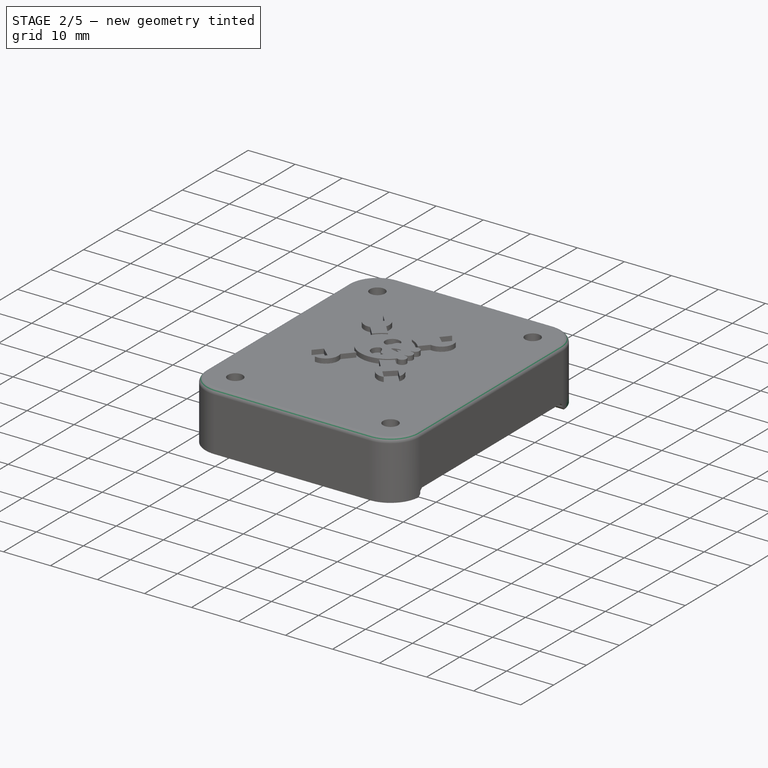
[diagram: stage 2 of 5 — iso view after this stage's code; geometry added in this stage tinted green]
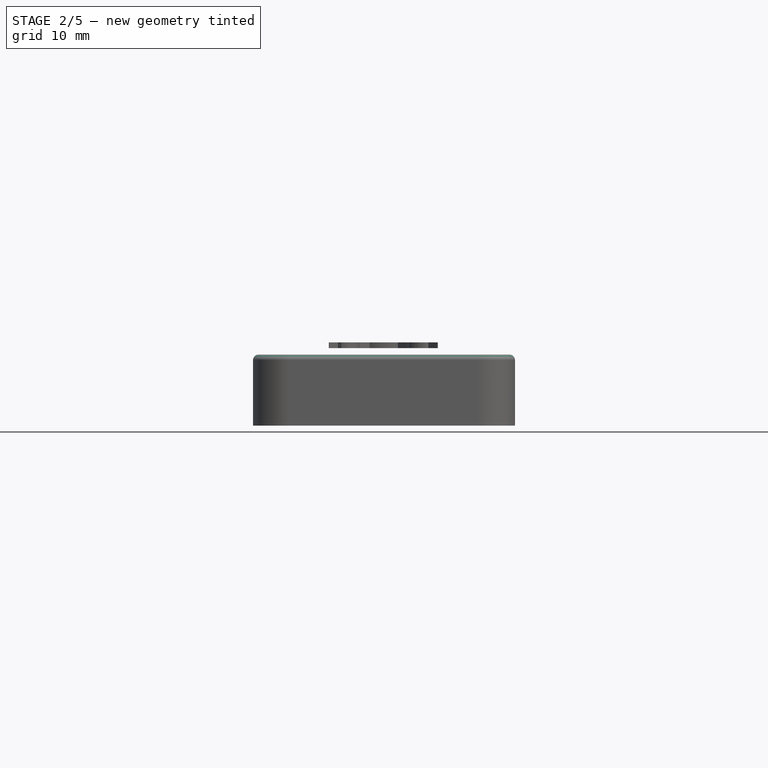
[diagram: stage 2 of 5 — front view after this stage's code; geometry added in this stage tinted green]
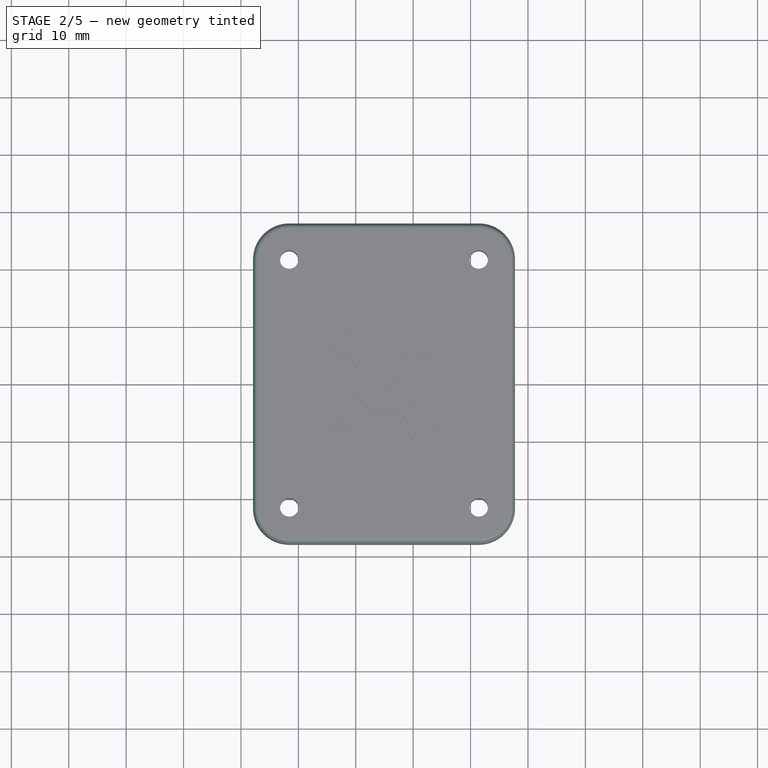
[diagram: stage 2 of 5 — top view after this stage's code; geometry added in this stage tinted green]
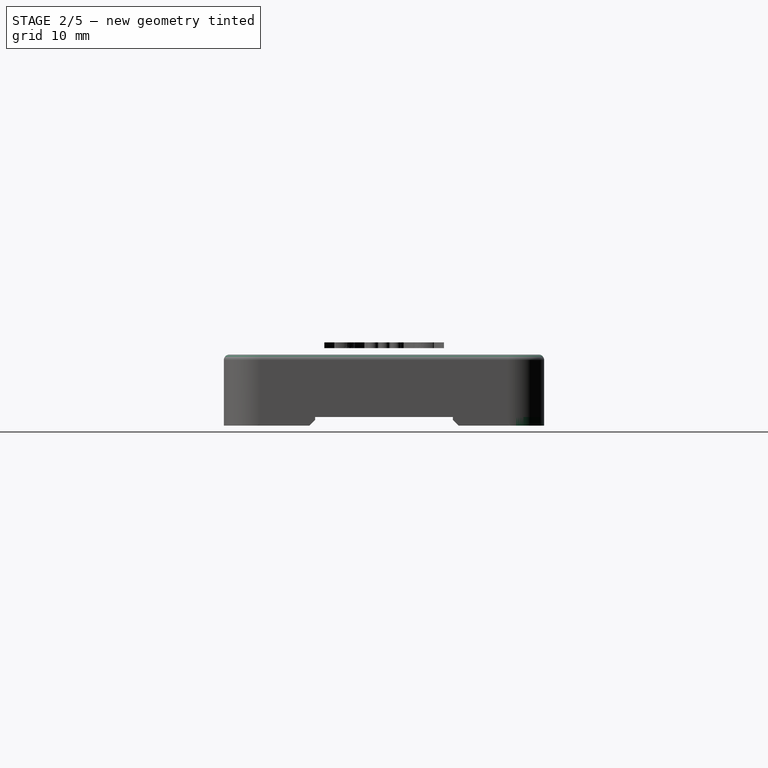
[diagram: stage 2 of 5 — right view after this stage's code; geometry added in this stage tinted green]
FEATURE [Sketcher::SketchObject] Sketch011
  ExternalGeometry = -> [Pad006]
  MapMode = 5
  Placement = pos=(-27.9,-2.2e-15,0) rot=(0.57735,-0.57735,-0.57735;2.0944rad)
  Support = -> [Pad006]
  sketch-geometry (4):
    g0: LineSegment StartX=-12 StartY=7.5 StartZ=0 EndX=12 EndY=7.5 EndZ=0
    g1: LineSegment StartX=12 StartY=7.5 StartZ=0 EndX=12 EndY=-1.5 EndZ=0
    g2: LineSegment StartX=12 StartY=-1.5 StartZ=0 EndX=-12 EndY=-1.5 EndZ=0
    g3: LineSegment StartX=-12 StartY=-1.5 StartZ=0 EndX=-12 EndY=7.5 EndZ=0
  constraints (11):
    c: Coincident(g0,g1)
    c: Coincident(g1,g2)
    c: Coincident(g2,g3)
    c: Coincident(g3,g0)
    c: Horizontal(g0)
    c: Vertical(g1)
    c: Vertical(g3)
    c: Symmetric(g1,g2,g-2)
    c: PointOnObject(g2,g-3)
    c: DistanceX(g0,g0) = 24
    c: DistanceY(g3,g3) = 9
FEATURE [PartDesign::Pocket] Pocket002
  BaseFeature = -> Pad006
  Length = 0
  Length2 = 100
  Profile = -> Sketch011
  Refine = true
  Type = 3
  UpToFace = -> Pad006 [Face27]
FEATURE [PartDesign::Chamfer] Chamfer
  Base = -> Pocket002 [Edge60,Edge58,Edge45,Edge53]
  BaseFeature = -> Pocket002
  Size = 1
FEATURE [PartDesign::Fillet] Fillet
  Base = -> Chamfer [Edge5]
  BaseFeature = -> Chamfer
  Radius = 1
FEATURE [PartDesign::Chamfer] Chamfer001
  Base = -> Fillet [Edge25,Edge77,Edge38,Edge90]
  BaseFeature = -> Fillet
  Size = 0.5
FEATURE [PartDesign::Chamfer] Chamfer002
  Base = -> Chamfer001 [Edge75,Edge74,Edge77,Edge76]
  BaseFeature = -> Chamfer001
  Size = 0.7
FEATURE [PartDesign::Chamfer] Chamfer003
  Base = -> Chamfer002 [Face34,Face44,Face45,Face43]
  BaseFeature = -> Chamfer002
  Size = 0.3
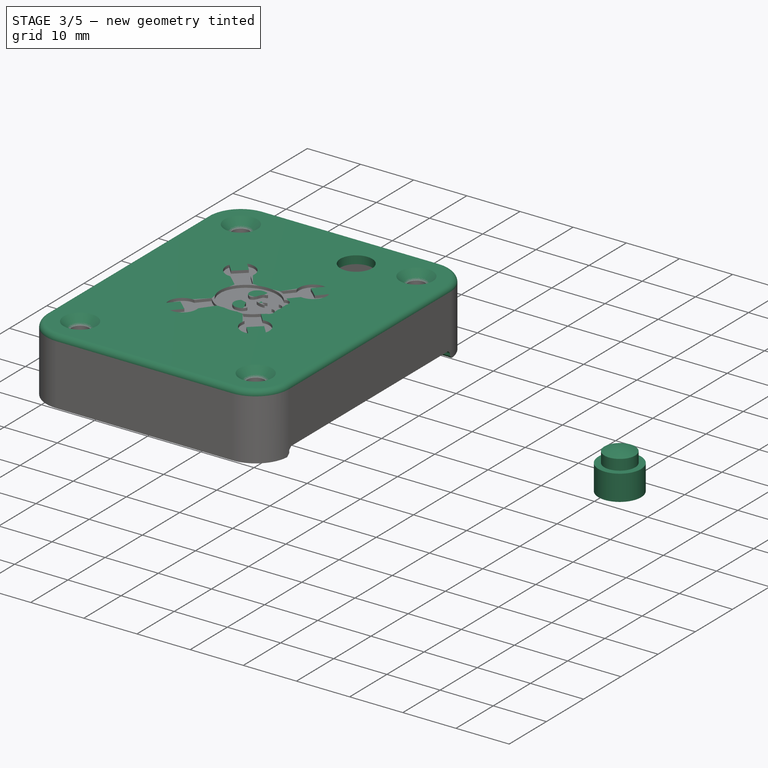
[diagram: stage 3 of 5 — iso view after this stage's code; geometry added in this stage tinted green]
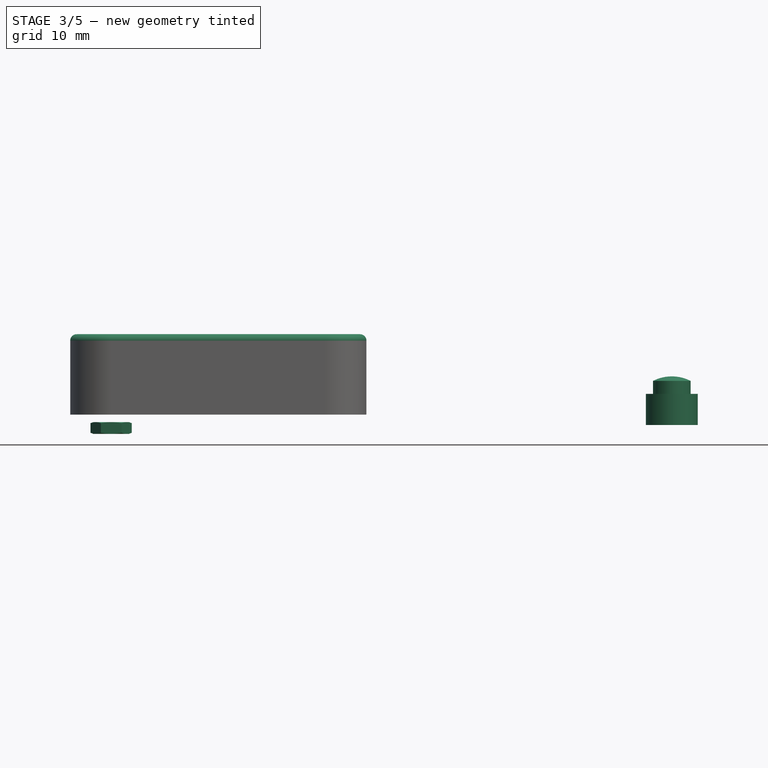
[diagram: stage 3 of 5 — front view after this stage's code; geometry added in this stage tinted green]
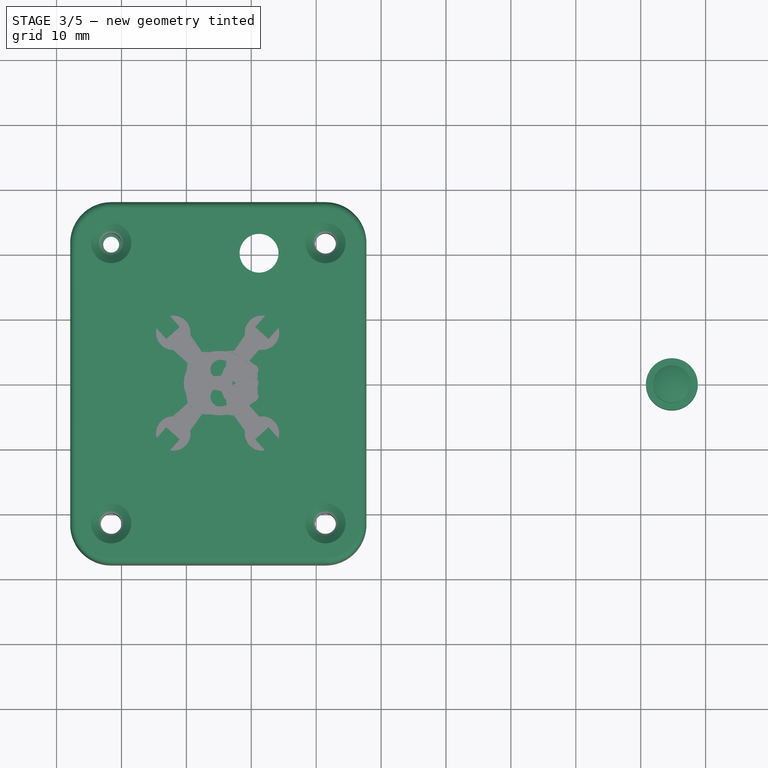
[diagram: stage 3 of 5 — top view after this stage's code; geometry added in this stage tinted green]
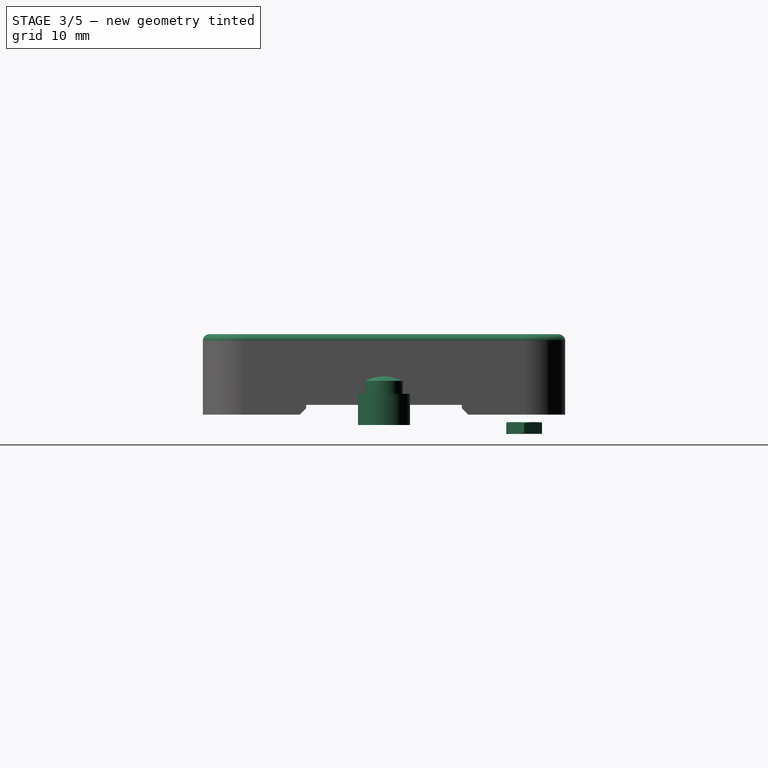
[diagram: stage 3 of 5 — right view after this stage's code; geometry added in this stage tinted green]
FEATURE [PartDesign::Chamfer] Chamfer004
  Base = -> Chamfer003 [Edge61,Edge116,Edge115,Edge114]
  BaseFeature = -> Chamfer003
  Size = 1.5
FEATURE [PartDesign::Body] Body004
  BaseFeature = -> Screw
  Group = -> [Clone002]
  Origin = -> Origin037
  Placement = pos=(33.02,43.18,0) rot=(0,0,1;0rad)
  Tip = -> Clone002
FEATURE [Part::FeaturePython] Nut  label="M3-Nut"  # Fasteners workbench fastener (typed FeaturePython)
  Placement = pos=(-21.59,21.59,-2.85) rot=(0,0,1;0rad)
  diameter = 4
  invert = false
  matchOuter = false
  offset = 0
  thread = false
  type = 6
FEATURE [PartDesign::Body] Body006
  BaseFeature = -> Nut
  Group = -> [Clone004]
  Origin = -> Origin039
  Placement = pos=(0,-43.18,0) rot=(0,0,1;0rad)
  Tip = -> Clone004
FEATURE [PartDesign::FeatureBase] Clone005
  BaseFeature = -> Nut
  Placement = pos=(-21.59,21.59,-2.85) rot=(0,0,1;0rad)
FEATURE [PartDesign::Body] Body007
  BaseFeature = -> Nut
  Group = -> [Clone005]
  Origin = -> Origin040
  Placement = pos=(33.02,-43.18,0) rot=(0,0,1;0rad)
  Tip = -> Clone005
FEATURE [App::DocumentObjectGroup] Group  label="fasteners"
  Group = -> [Screw,Body002,Body003,Body004,Nut,Body005,Body006,Body007]
FEATURE [Sketcher::SketchObject] Sketch013
  ExternalGeometry = -> [ShapeBinder001]
  MapMode = 5
  Placement = pos=(0,0,10.9) rot=(0,0,1;0rad)
  Support = -> [Chamfer004]
  sketch-geometry (7):
    g0: LineSegment [constr] StartX=-2.055 StartY=22.28 StartZ=0 EndX=4.445 EndY=22.28 EndZ=0
    g1: LineSegment [constr] StartX=4.445 StartY=22.28 StartZ=0 EndX=4.445 EndY=17.78 EndZ=0
    g2: LineSegment [constr] StartX=4.445 StartY=17.78 StartZ=0 EndX=-2.055 EndY=17.78 EndZ=0
    g3: LineSegment [constr] StartX=-2.055 StartY=17.78 StartZ=0 EndX=-2.055 EndY=22.28 EndZ=0
    g4: LineSegment [constr] StartX=1.195 StartY=22.28 StartZ=0 EndX=1.195 EndY=17.78 EndZ=0
    g5: LineSegment [constr] StartX=4.445 StartY=20.03 StartZ=0 EndX=1.195 EndY=20.03 EndZ=0
    g6: Circle CenterX=1.195 CenterY=20.03 CenterZ=0 NormalX=0 NormalY=0 NormalZ=1 AngleXU=0 Radius=3
  constraints (18):
    c: Coincident(g0,g1)
    c: Coincident(g1,g2)
    c: Coincident(g2,g3)
    c: Coincident(g3,g0)
    c: Horizontal(g0)
    c: Horizontal(g2)
    c: Vertical(g1)
    c: Vertical(g3)
    c: Coincident(g-3,g0)
    c: Coincident(g1,g-5)
    c: Vertical(g4)
    c: PointOnObject(g4,g2)
    c: PointOnObject(g5,g1)
    c: Symmetric(g4,g4,g5)
    c: PointOnObject(g5,g4)
    c: Symmetric(g0,g0,g4)
    c: Coincident(g6,g5)
    c: Radius(g6) = 3
FEATURE [PartDesign::Pocket] Pocket004
  BaseFeature = -> Chamfer004
  Length = 5
  Length2 = 100
  Profile = -> Sketch013
  Refine = true
  Type = 1
FEATURE [PartDesign::Body] Body001  label="Top"
  Group = -> [Sketch005,Sketch006,ShapeBinder001,Pad003,Sketch007,Pad004,Sketch008,Pocket001,Sketch009,Pad005,Sketch010,Pad006,Sketch011,Pocket002,Chamfer,Fillet,Chamfer001,Chamfer002,Chamfer003,Chamfer004,Sketch013,Pocket004]
  Origin = -> Origin016
  Placement = pos=(0,0,1.6) rot=(0,0,1;0rad)
  Tip = -> Pocket004
FEATURE [PartDesign::ShapeBinder] ShapeBinder002
  Placement = pos=(67.945,-20.32,0) rot=(0,0,1;3.14159rad)
  Support = -> [Shape]
  TraceSupport = false
FEATURE [Sketcher::SketchObject] Sketch014
  ExternalGeometry = -> [ShapeBinder002]
  MapMode = 5
  Placement = pos=(0,0,0) rot=(0,0.707107,0.707107;3.14159rad)
  Support = -> [XZ_Plane]
  sketch-geometry (8):
    g0: LineSegment StartX=-64.795 StartY=6 StartZ=0 EndX=-64.795 EndY=-0.9 EndZ=0
    g1: LineSegment StartX=-64.795 StartY=-0.9 StartZ=0 EndX=-66.795 EndY=-0.9 EndZ=0
    g2: LineSegment StartX=-66.795 StartY=-0.9 StartZ=0 EndX=-66.795 EndY=-1.5 EndZ=0
    g3: LineSegment StartX=-66.795 StartY=-1.5 StartZ=0 EndX=-68.795 EndY=-1.5 EndZ=0
    g4: LineSegment StartX=-68.795 StartY=-1.5 StartZ=0 EndX=-68.795 EndY=3.3 EndZ=0
    g5: LineSegment StartX=-68.795 StartY=3.3 StartZ=0 EndX=-67.695 EndY=3.3 EndZ=0
    g6: LineSegment StartX=-67.695 StartY=3.3 StartZ=0 EndX=-67.695 EndY=5.3 EndZ=0
    g7: ArcOfCircle CenterX=-64.795 CenterY=-0.357143 CenterZ=0 NormalX=0 NormalY=0 NormalZ=1 AngleXU=0 Radius=6.35714 StartAngle=1.5708 EndAngle=2.04449
  constraints (24):
    c: Coincident(g0,g1)
    c: Horizontal(g1)
    c: Coincident(g1,g2)
    c: Coincident(g2,g3)
    c: Horizontal(g3)
    c: Coincident(g3,g4)
    c: Vertical(g4)
    c: Coincident(g4,g5)
    c: Horizontal(g5)
    c: Coincident(g5,g6)
    c: Vertical(g6)
    c: Coincident(g0,g7)
    c: Coincident(g6,g7)
    c: PointOnObject(g7,g0)
    c: DistanceX(g5,g5) = 1.1
    c: Symmetric(g-4,g-3,g0)
    c: DistanceX(g1,g1) = 2
    c: Vertical(g2)
    c: DistanceY(g2,g2) = 0.6
    c: DistanceX(g3,g3) = 2
    c: DistanceY(g6,g6) = 2
    c: DistanceY(g0,g-1) = 0.9
    c: DistanceY(g4,g4) = 4.8
    c: DistanceY(g0,g0) = 6.9
FEATURE [PartDesign::Revolution] Revolution
  Angle = 360
  Axis = (0,-2e-16,-1)
  Base = (64.795,1.3e-15,6)
  Placement = pos=(0,0,0) rot=(1,0,0;1.5708rad)
  Profile = -> Sketch014
  ReferenceAxis = -> Sketch014 [Edge1]
  Refine = true
FEATURE [PartDesign::Body] Body008  label="BUTTON"
  Group = -> [Sketch014,ShapeBinder002,Revolution]
  Origin = -> Origin
  Placement = pos=(-63.6,20.003,7.5) rot=(0,0,1;0rad)
  Tip = -> Revolution
FEATURE [Part::Feature] Part__Feature  label="CircuitWorks-BATT CR2032"
  Placement = pos=(-15,0,4.8) rot=(-1,0,0;1.5708rad)
  shape: bbox 21.65 x 21.65 x 3.2 mm, 17 faces (baked)
FEATURE [Part::Feature] Part__Feature001  label="CircuitWorks-BATT CR2033"
  Placement = pos=(-15,0,8) rot=(-1,0,0;1.5708rad)
  shape: bbox 21.65 x 21.65 x 3.2 mm, 17 faces (baked)
FEATURE [Part::MultiFuse] Fusion  label="CR2032x2"
  Placement = pos=(-16,15,0) rot=(0,0,1;1.5708rad)
  Refine = true
  Shapes = -> [Part__Feature,Part__Feature001]
FEATURE [Part::Cut] Cut  label="TOP"
  Base = -> Body001
  Refine = true
  Tool = -> Extrude
FEATURE [Part::Feature] trajectory_line
  shape: bbox 2e-07 x 2e-07 x 60 mm, 0 faces, 0 solids (baked)
FEATURE [App::DocumentObjectGroupPython] BoltGroup  # scripted group (container) (typed FeaturePython)
  AnimationStepTime = 0.05
  AnimationSteps = 50
  Distance = 60
  Group = -> [trajectory_line]
  Revolutions = 30
FEATURE [Part::Feature] trajectory_line002
  shape: bbox 2e-07 x 2e-07 x 40 mm, 0 faces, 0 solids (baked)
FEATURE [App::DocumentObjectGroupPython] SimpleGroup002  # scripted group (container) (typed FeaturePython)
  AnimationStepTime = 0.05
  AnimationSteps = 20
  Distance = 40
  Group = -> [trajectory_line002]
  Revolutions = 0
FEATURE [Part::Feature] trajectory_line003
  shape: bbox 2e-07 x 2e-07 x 30 mm, 0 faces, 0 solids (baked)
FEATURE [App::DocumentObjectGroupPython] SimpleGroup001  # scripted group (container) (typed FeaturePython)
  AnimationStepTime = 0.05
  AnimationSteps = 20
  Distance = 30
  Group = -> [trajectory_line003]
  Revolutions = 0
FEATURE [Part::Feature] trajectory_line004
  shape: bbox 30 x 2e-07 x 2e-07 mm, 0 faces, 0 solids (baked)
FEATURE [App::DocumentObjectGroupPython] SimpleGroup003  # scripted group (container) (typed FeaturePython)
  AnimationStepTime = 0.05
  AnimationSteps = 20
  Distance = -30
  Group = -> [trajectory_line004]
  Revolutions = 0
FEATURE [Part::Feature] trajectory_line005
  shape: bbox 2e-07 x 2e-07 x 20 mm, 0 faces, 0 solids (baked)
FEATURE [App::DocumentObjectGroupPython] SimpleGroup004  # scripted group (container) (typed FeaturePython)
  AnimationStepTime = 0
  AnimationSteps = 20
  Distance = 20
  Group = -> [trajectory_line005]
  Revolutions = 0
FEATURE [App::DocumentObjectGroupPython] ExplodedAssembly  # scripted group (container) (typed FeaturePython)
  AnimationStep = 0
  CurrentTrajectory = 0
  Group = -> [BoltGroup,SimpleGroup002,SimpleGroup001,SimpleGroup004,SimpleGroup003]
  InAnimation = false
  RemoveAllTrajectories = false
  ResetAnimation = false
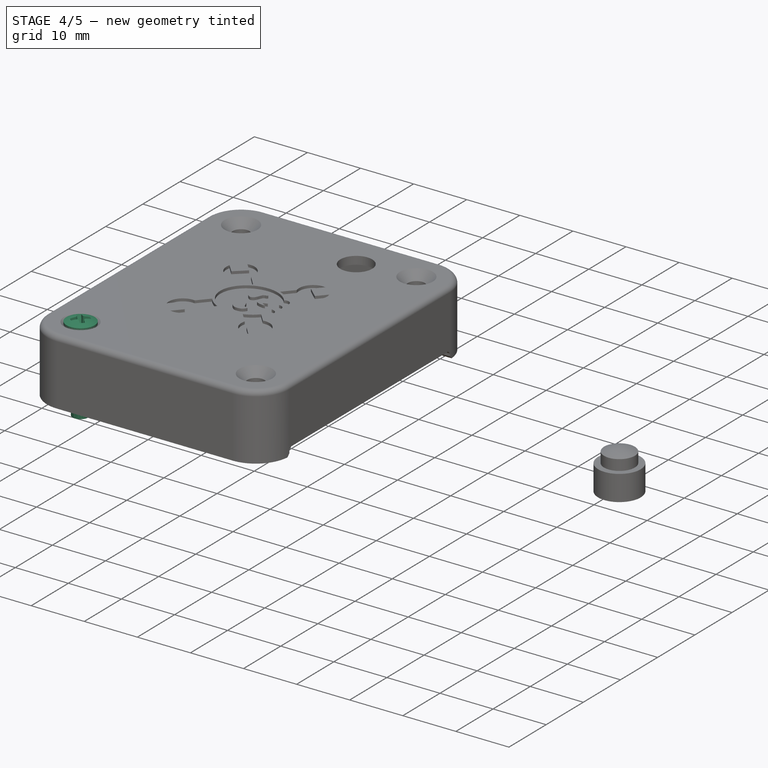
[diagram: stage 4 of 5 — iso view after this stage's code; geometry added in this stage tinted green]
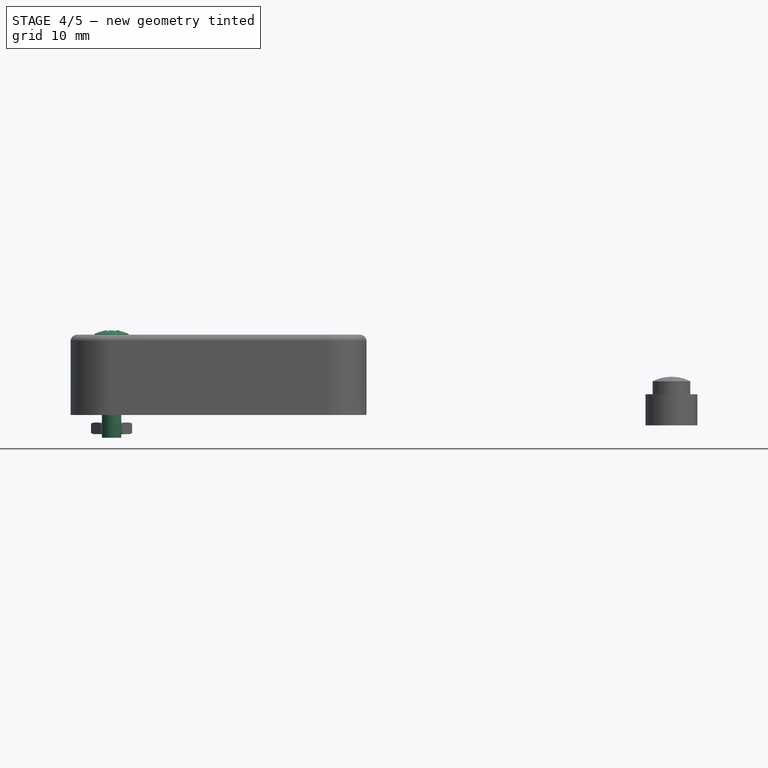
[diagram: stage 4 of 5 — front view after this stage's code; geometry added in this stage tinted green]
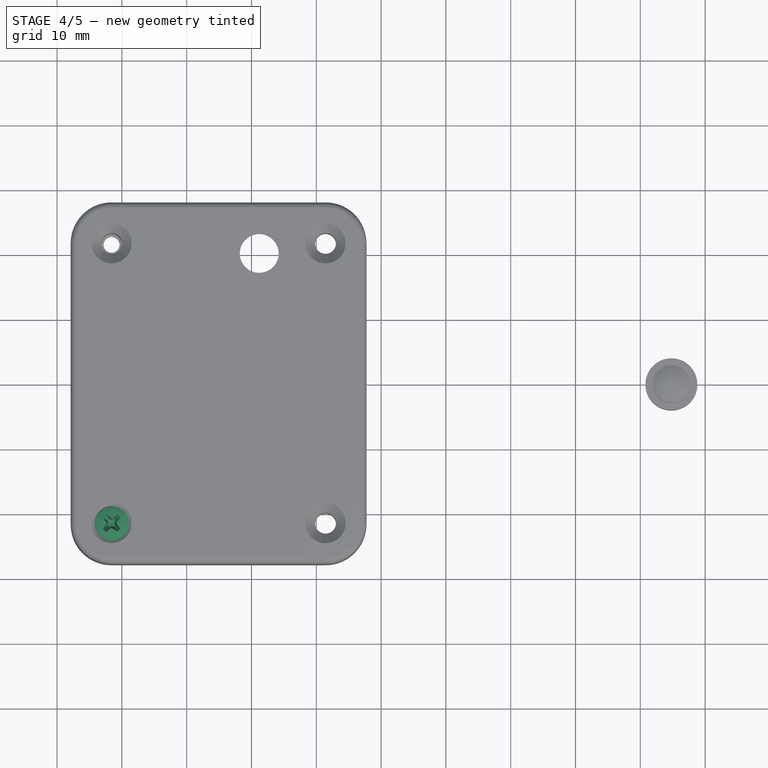
[diagram: stage 4 of 5 — top view after this stage's code; geometry added in this stage tinted green]
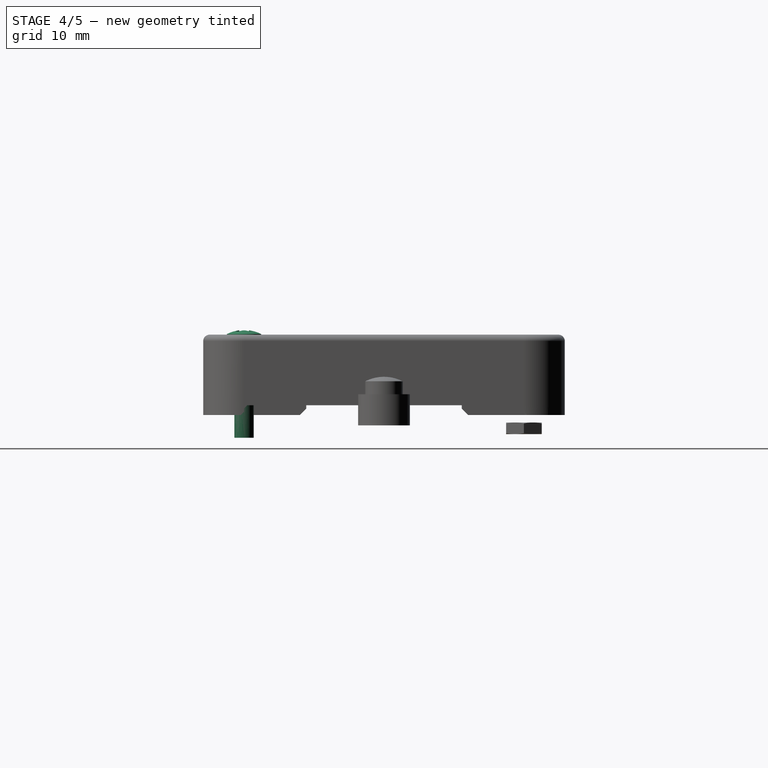
[diagram: stage 4 of 5 — right view after this stage's code; geometry added in this stage tinted green]
FEATURE [PartDesign::Body] Body  label="BOTTOM"
  Group = -> [Sketch001,ShapeBinder,Pad,Sketch002,Pad001,Sketch003,Pocket,Sketch004,Pad002,Sketch012,Pocket003,Chamfer005]
  Origin = -> Origin015
  Tip = -> Chamfer005
FEATURE [Part::FeaturePython] Screw  label="M3x16-Screw"  # Fasteners workbench fastener (typed FeaturePython)
  Placement = pos=(-21.59,-21.59,12.6) rot=(0,0,1;0rad)
  diameter = 4
  invert = false
  length = 7
  lengthCustom = 16
  matchOuter = false
  offset = 0
  thread = false
  type = 19
FEATURE [PartDesign::FeatureBase] Clone
  BaseFeature = -> Screw
  Placement = pos=(-21.59,-21.59,12.6) rot=(0,0,1;0rad)
FEATURE [PartDesign::Body] Body002
  BaseFeature = -> Screw
  Group = -> [Clone]
  Origin = -> Origin035
  Placement = pos=(33.02,0,0) rot=(0,0,1;0rad)
  Tip = -> Clone
FEATURE [PartDesign::FeatureBase] Clone001
  BaseFeature = -> Screw
  Placement = pos=(-21.59,-21.59,12.6) rot=(0,0,1;0rad)
FEATURE [PartDesign::Body] Body003
  BaseFeature = -> Screw
  Group = -> [Clone001]
  Origin = -> Origin036
  Placement = pos=(0,43.18,0) rot=(0,0,1;0rad)
  Tip = -> Clone001
FEATURE [PartDesign::FeatureBase] Clone002
  BaseFeature = -> Screw
  Placement = pos=(-21.59,-21.59,12.6) rot=(0,0,1;0rad)
FEATURE [PartDesign::FeatureBase] Clone003
  BaseFeature = -> Nut
  Placement = pos=(-21.59,21.59,-2.85) rot=(0,0,1;0rad)
FEATURE [PartDesign::Body] Body005
  BaseFeature = -> Nut
  Group = -> [Clone003]
  Origin = -> Origin038
  Placement = pos=(33.02,0,0) rot=(0,0,1;0rad)
  Tip = -> Clone003
FEATURE [PartDesign::FeatureBase] Clone004
  BaseFeature = -> Nut
  Placement = pos=(-21.59,21.59,-2.85) rot=(0,0,1;0rad)
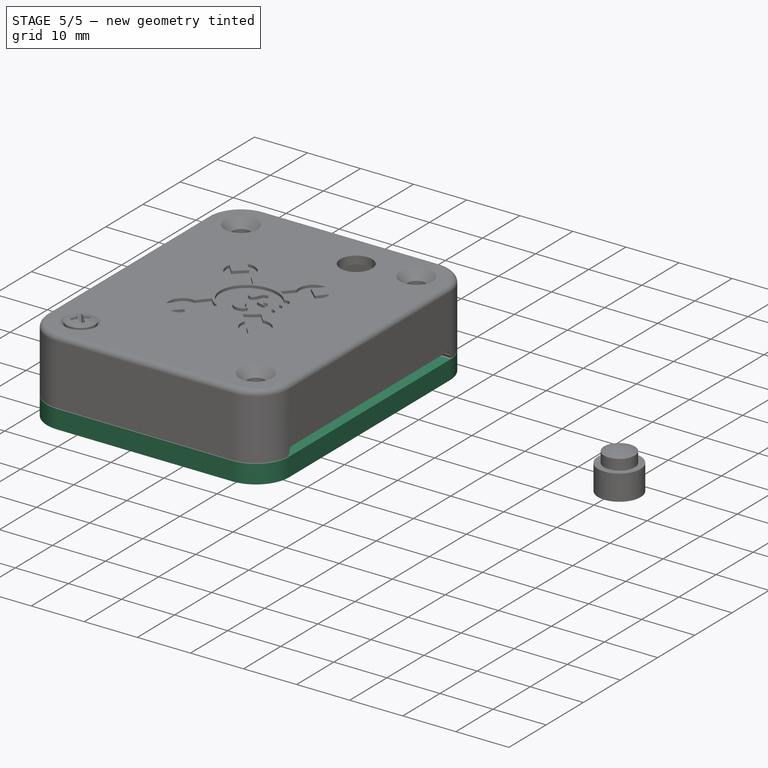
[diagram: stage 5 of 5 — iso view after this stage's code; geometry added in this stage tinted green]
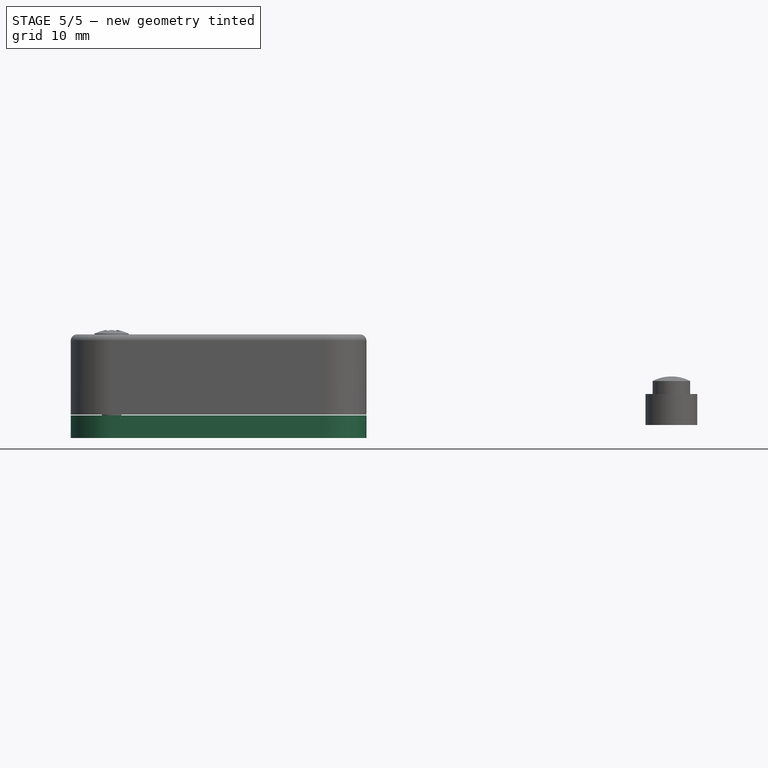
[diagram: stage 5 of 5 — front view after this stage's code; geometry added in this stage tinted green]
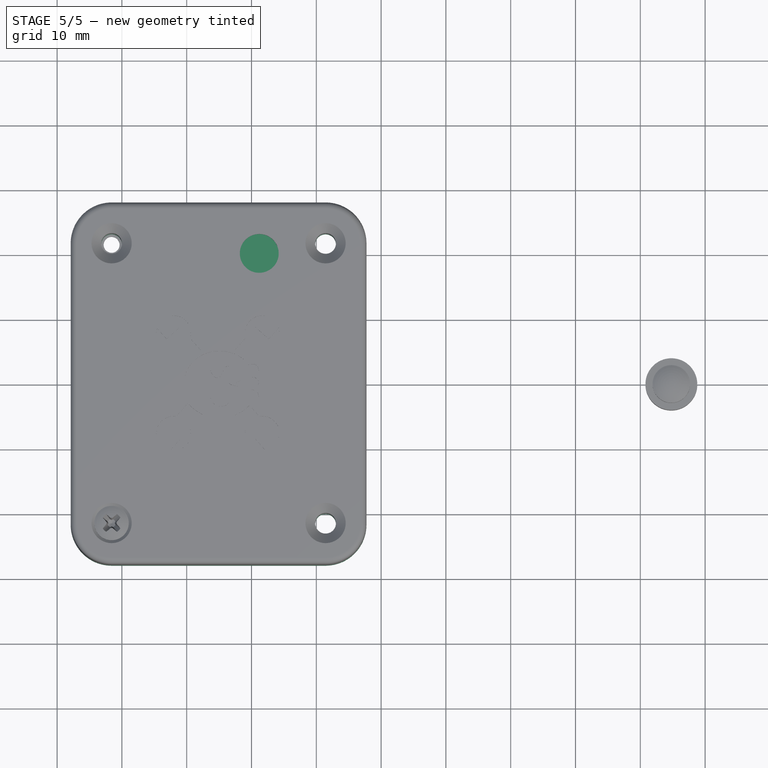
[diagram: stage 5 of 5 — top view after this stage's code; geometry added in this stage tinted green]
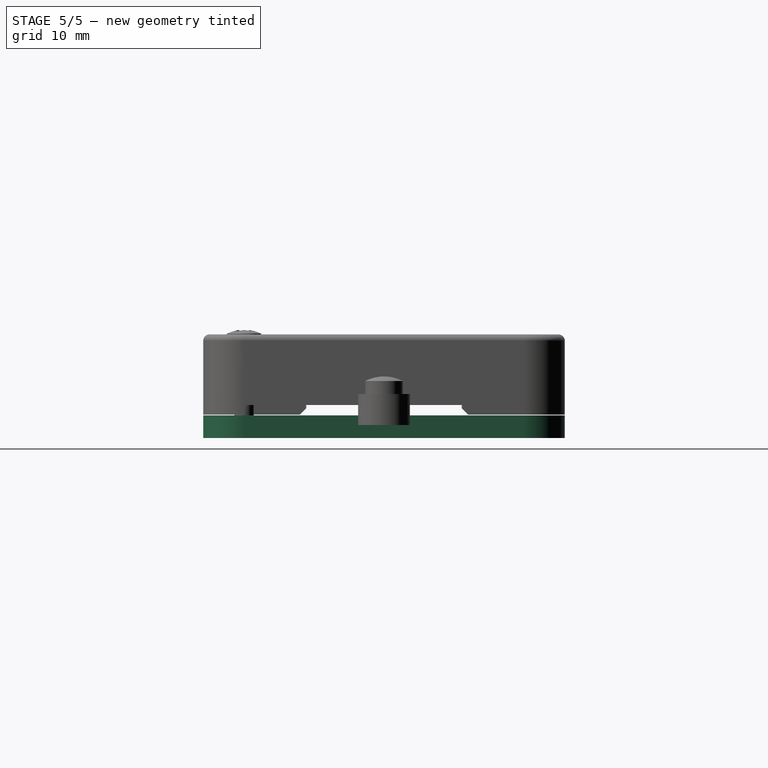
[diagram: stage 5 of 5 — right view after this stage's code; geometry added in this stage tinted green]
FEATURE [Sketcher::SketchObject] Sketch
  sketch-geometry (62):
    g0: LineSegment StartX=-25.4 StartY=-8.89 StartZ=0 EndX=-25.4 EndY=-21.59 EndZ=0
    g1: ArcOfCircle CenterX=-24.13 CenterY=-8.89 CenterZ=0 NormalX=0 NormalY=0 NormalZ=1 AngleXU=0 Radius=1.27 StartAngle=1.5708 EndAngle=3.14159
    g2: ArcOfCircle CenterX=-21.59 CenterY=-21.59 CenterZ=0 NormalX=0 NormalY=0 NormalZ=1 AngleXU=0 Radius=3.81 StartAngle=3.14159 EndAngle=4.71239
    g3: LineSegment StartX=-21.59 StartY=-25.4 StartZ=0 EndX=11.43 EndY=-25.4 EndZ=0
    g4: ArcOfCircle CenterX=11.43 CenterY=-21.59 CenterZ=0 NormalX=0 NormalY=0 NormalZ=1 AngleXU=0 Radius=3.81 StartAngle=4.71239 EndAngle=6.28319
    g5: ArcOfCircle CenterX=19.05 CenterY=-21.59 CenterZ=0 NormalX=0 NormalY=0 NormalZ=1 AngleXU=0 Radius=3.81 StartAngle=1.5708 EndAngle=3.14159
    g6: LineSegment StartX=19.05 StartY=-17.78 StartZ=0 EndX=21.59 EndY=-17.78 EndZ=0
    g7: ArcOfCircle CenterX=21.59 CenterY=-13.97 CenterZ=0 NormalX=0 NormalY=0 NormalZ=1 AngleXU=0 Radius=3.81 StartAngle=4.71239 EndAngle=6.28319
    g8: LineSegment StartX=25.4 StartY=-13.97 StartZ=0 EndX=25.4 EndY=13.97 EndZ=0
    g9: ArcOfCircle CenterX=21.59 CenterY=13.97 CenterZ=0 NormalX=0 NormalY=0 NormalZ=1 AngleXU=0 Radius=3.81 StartAngle=0 EndAngle=1.5708
    g10: LineSegment StartX=21.59 StartY=17.78 StartZ=0 EndX=19.05 EndY=17.78 EndZ=0
    g11: ArcOfCircle CenterX=19.05 CenterY=21.59 CenterZ=0 NormalX=0 NormalY=0 NormalZ=1 AngleXU=0 Radius=3.81 StartAngle=3.14159 EndAngle=4.71239
    g12: ArcOfCircle CenterX=11.43 CenterY=21.59 CenterZ=0 NormalX=0 NormalY=0 NormalZ=1 AngleXU=0 Radius=3.81 StartAngle=0 EndAngle=1.5708
    g13: LineSegment StartX=11.43 StartY=25.4 StartZ=0 EndX=-21.59 EndY=25.4 EndZ=0
    g14: ArcOfCircle CenterX=-21.59 CenterY=21.59 CenterZ=0 NormalX=0 NormalY=0 NormalZ=1 AngleXU=0 Radius=3.81 StartAngle=1.5708 EndAngle=3.14159
    g15: LineSegment StartX=-25.4 StartY=21.59 StartZ=0 EndX=-25.4 EndY=8.89 EndZ=0
    g16: ArcOfCircle CenterX=-24.13 CenterY=8.89 CenterZ=0 NormalX=0 NormalY=0 NormalZ=1 AngleXU=0 Radius=1.27 StartAngle=3.14159 EndAngle=4.71239
    g17: ArcOfCircle CenterX=-24.13 CenterY=6.35 CenterZ=0 NormalX=0 NormalY=0 NormalZ=1 AngleXU=0 Radius=1.27 StartAngle=0 EndAngle=1.5708
    g18: LineSegment StartX=-22.86 StartY=6.35 StartZ=0 EndX=-22.86 EndY=-6.35 EndZ=0
    g19: ArcOfCircle CenterX=-24.13 CenterY=-6.35 CenterZ=0 NormalX=0 NormalY=0 NormalZ=1 AngleXU=0 Radius=1.27 StartAngle=4.71239 EndAngle=6.28319
    g20: Circle CenterX=-2.055 CenterY=17.78 CenterZ=0 NormalX=0 NormalY=0 NormalZ=1 AngleXU=0 Radius=0.55
    g21: Circle CenterX=-15.875 CenterY=11.9253 CenterZ=0 NormalX=0 NormalY=0 NormalZ=1 AngleXU=0 Radius=0.9525
    g22: Circle CenterX=-15.875 CenterY=-5.715 CenterZ=0 NormalX=0 NormalY=0 NormalZ=1 AngleXU=0 Radius=0.3175
    g23: Circle CenterX=-15.875 CenterY=0 CenterZ=0 NormalX=0 NormalY=0 NormalZ=1 AngleXU=0 Radius=0.3175
    g24: Circle CenterX=-15.875 CenterY=5.715 CenterZ=0 NormalX=0 NormalY=0 NormalZ=1 AngleXU=0 Radius=0.3175
    g25: Circle CenterX=-10.16 CenterY=-3e-16 CenterZ=0 NormalX=0 NormalY=0 NormalZ=1 AngleXU=0 Radius=0.3175
    g26: Circle CenterX=-10.795 CenterY=19.05 CenterZ=0 NormalX=0 NormalY=0 NormalZ=1 AngleXU=0 Radius=0.5
    g27: Circle CenterX=-8.255 CenterY=19.05 CenterZ=0 NormalX=0 NormalY=0 NormalZ=1 AngleXU=0 Radius=0.5
    g28: Circle CenterX=-5.715 CenterY=19.05 CenterZ=0 NormalX=0 NormalY=0 NormalZ=1 AngleXU=0 Radius=0.5
    g29: Circle CenterX=5.08 CenterY=3.81 CenterZ=0 NormalX=0 NormalY=0 NormalZ=1 AngleXU=0 Radius=0.4
    g30: Circle CenterX=5.08 CenterY=-3.81 CenterZ=0 NormalX=0 NormalY=0 NormalZ=1 AngleXU=0 Radius=0.4
    g31: Circle CenterX=4.445 CenterY=17.78 CenterZ=0 NormalX=0 NormalY=0 NormalZ=1 AngleXU=0 Radius=0.55
    g32: Circle CenterX=-0.635 CenterY=-3.81 CenterZ=0 NormalX=0 NormalY=0 NormalZ=1 AngleXU=0 Radius=0.4
    g33: Circle CenterX=2.54 CenterY=-3.81 CenterZ=0 NormalX=0 NormalY=0 NormalZ=1 AngleXU=0 Radius=0.4
    g34: Circle CenterX=2.54 CenterY=3.81 CenterZ=0 NormalX=0 NormalY=0 NormalZ=1 AngleXU=0 Radius=0.4
    g35: Circle CenterX=-0.635 CenterY=3.81 CenterZ=0 NormalX=0 NormalY=0 NormalZ=1 AngleXU=0 Radius=0.4
    g36: Circle CenterX=-8.255 CenterY=-19.05 CenterZ=0 NormalX=0 NormalY=0 NormalZ=1 AngleXU=0 Radius=0.5
    g37: Circle CenterX=-10.795 CenterY=-19.05 CenterZ=0 NormalX=0 NormalY=0 NormalZ=1 AngleXU=0 Radius=0.5
    g38: Circle CenterX=-15.875 CenterY=-11.9253 CenterZ=0 NormalX=0 NormalY=0 NormalZ=1 AngleXU=0 Radius=0.9525
    g39: Circle CenterX=-1.23 CenterY=-6.985 CenterZ=0 NormalX=0 NormalY=0 NormalZ=1 AngleXU=0 Radius=0.4
    g40: Circle CenterX=-5.715 CenterY=-11.47 CenterZ=0 NormalX=0 NormalY=0 NormalZ=1 AngleXU=0 Radius=0.4
    g41: Circle CenterX=-5.715 CenterY=-13.97 CenterZ=0 NormalX=0 NormalY=0 NormalZ=1 AngleXU=0 Radius=0.4
    g42: Circle CenterX=-3.175 CenterY=-19.05 CenterZ=0 NormalX=0 NormalY=0 NormalZ=1 AngleXU=0 Radius=0.5
    g43: Circle CenterX=-0.635 CenterY=-19.05 CenterZ=0 NormalX=0 NormalY=0 NormalZ=1 AngleXU=0 Radius=0.5
    g44: Circle CenterX=1.905 CenterY=-19.05 CenterZ=0 NormalX=0 NormalY=0 NormalZ=1 AngleXU=0 Radius=0.5
    g45: Circle CenterX=1.27 CenterY=-6.985 CenterZ=0 NormalX=0 NormalY=0 NormalZ=1 AngleXU=0 Radius=0.4
    g46: Circle CenterX=7.62 CenterY=-3.81 CenterZ=0 NormalX=0 NormalY=0 NormalZ=1 AngleXU=0 Radius=0.4
    g47: Circle CenterX=7.62 CenterY=3.81 CenterZ=0 NormalX=0 NormalY=0 NormalZ=1 AngleXU=0 Radius=0.4
    g48: Circle CenterX=-5.715 CenterY=21.59 CenterZ=0 NormalX=0 NormalY=0 NormalZ=1 AngleXU=0 Radius=0.5
    g49: Circle CenterX=-2.055 CenterY=22.28 CenterZ=0 NormalX=0 NormalY=0 NormalZ=1 AngleXU=0 Radius=0.55
    g50: Circle CenterX=4.445 CenterY=22.28 CenterZ=0 NormalX=0 NormalY=0 NormalZ=1 AngleXU=0 Radius=0.55
    g51: Circle CenterX=-8.255 CenterY=21.59 CenterZ=0 NormalX=0 NormalY=0 NormalZ=1 AngleXU=0 Radius=0.5
    g52: Circle CenterX=-10.795 CenterY=21.59 CenterZ=0 NormalX=0 NormalY=0 NormalZ=1 AngleXU=0 Radius=0.5
    g53: Circle CenterX=-21.59 CenterY=3e-16 CenterZ=0 NormalX=0 NormalY=0 NormalZ=1 AngleXU=0 Radius=0.3175
    g54: Circle CenterX=-21.59 CenterY=21.59 CenterZ=0 NormalX=0 NormalY=0 NormalZ=1 AngleXU=0 Radius=1.6
    g55: Circle CenterX=11.43 CenterY=21.59 CenterZ=0 NormalX=0 NormalY=0 NormalZ=1 AngleXU=0 Radius=1.6
    g56: Circle CenterX=10.16 CenterY=15.24 CenterZ=0 NormalX=0 NormalY=0 NormalZ=1 AngleXU=0 Radius=0.4
    g57: Circle CenterX=10.16 CenterY=3.81 CenterZ=0 NormalX=0 NormalY=0 NormalZ=1 AngleXU=0 Radius=0.4
    g58: Circle CenterX=10.16 CenterY=7.62 CenterZ=0 NormalX=0 NormalY=0 NormalZ=1 AngleXU=0 Radius=0.4
    g59: Circle CenterX=10.16 CenterY=-3.81 CenterZ=0 NormalX=0 NormalY=0 NormalZ=1 AngleXU=0 Radius=0.4
    g60: Circle CenterX=11.43 CenterY=-21.59 CenterZ=0 NormalX=0 NormalY=0 NormalZ=1 AngleXU=0 Radius=1.6
    g61: Circle CenterX=-21.59 CenterY=-21.59 CenterZ=0 NormalX=0 NormalY=0 NormalZ=1 AngleXU=0 Radius=1.6
FEATURE [PartDesign::ShapeBinder] ShapeBinder
  Support = -> [Sketch]
  TraceSupport = false
FEATURE [Sketcher::SketchObject] Sketch001
  ExternalGeometry = -> [ShapeBinder]
  MapMode = 5
  Support = -> [XY_Plane015]
  sketch-geometry (29):
    g0: LineSegment StartX=-21.59 StartY=25.9 StartZ=0 EndX=11.43 EndY=25.9 EndZ=0
    g1: ArcOfCircle CenterX=11.43 CenterY=21.59 CenterZ=0 NormalX=0 NormalY=0 NormalZ=1 AngleXU=0 Radius=4.31 StartAngle=4.02074e-08 EndAngle=1.5708
    g2: LineSegment StartX=15.74 StartY=21.59 StartZ=0 EndX=15.74 EndY=-21.59 EndZ=0
    g3: ArcOfCircle CenterX=11.43 CenterY=-21.59 CenterZ=0 NormalX=0 NormalY=0 NormalZ=1 AngleXU=0 Radius=4.31 StartAngle=4.71239 EndAngle=6.28319
    g4: LineSegment StartX=11.43 StartY=-25.9 StartZ=0 EndX=-21.59 EndY=-25.9 EndZ=0
    g5: ArcOfCircle CenterX=-21.59 CenterY=-21.59 CenterZ=0 NormalX=0 NormalY=0 NormalZ=1 AngleXU=0 Radius=4.31 StartAngle=3.14159 EndAngle=4.71239
    g6: LineSegment StartX=-25.9 StartY=-21.59 StartZ=0 EndX=-25.9 EndY=-8.89 EndZ=0
    g7: ArcOfCircle CenterX=-24.13 CenterY=-8.89 CenterZ=0 NormalX=0 NormalY=0 NormalZ=1 AngleXU=0 Radius=1.77 StartAngle=1.5708 EndAngle=3.14159
    g8: ArcOfCircle CenterX=-24.13 CenterY=-6.35 CenterZ=0 NormalX=0 NormalY=0 NormalZ=1 AngleXU=0 Radius=0.77 StartAngle=4.71239 EndAngle=6.28319
    g9: LineSegment StartX=-23.36 StartY=-6.35 StartZ=0 EndX=-23.36 EndY=6.35 EndZ=0
    g10: ArcOfCircle CenterX=-24.13 CenterY=6.35 CenterZ=0 NormalX=0 NormalY=0 NormalZ=1 AngleXU=0 Radius=0.77 StartAngle=2e-16 EndAngle=1.5708
    g11: ArcOfCircle CenterX=-24.13 CenterY=8.89 CenterZ=0 NormalX=0 NormalY=0 NormalZ=1 AngleXU=0 Radius=1.77 StartAngle=3.14159 EndAngle=4.71239
    g12: LineSegment StartX=-25.9 StartY=8.89 StartZ=0 EndX=-25.9 EndY=21.59 EndZ=0
    g13: ArcOfCircle CenterX=-21.59 CenterY=21.59 CenterZ=0 NormalX=0 NormalY=0 NormalZ=1 AngleXU=0 Radius=4.31 StartAngle=1.5708 EndAngle=3.14159
    g14: LineSegment [constr] StartX=-21.59 StartY=25.9 StartZ=0 EndX=-21.59 EndY=25.4 EndZ=0
    g15: LineSegment StartX=-21.59 StartY=27.9 StartZ=0 EndX=11.43 EndY=27.9 EndZ=0
    g16: ArcOfCircle CenterX=11.43 CenterY=21.59 CenterZ=0 NormalX=0 NormalY=0 NormalZ=1 AngleXU=0 Radius=6.31 StartAngle=2.74634e-08 EndAngle=1.5708
    g17: LineSegment StartX=17.74 StartY=21.59 StartZ=0 EndX=17.74 EndY=-21.59 EndZ=0
    g18: ArcOfCircle CenterX=11.43 CenterY=-21.59 CenterZ=0 NormalX=0 NormalY=0 NormalZ=1 AngleXU=0 Radius=6.31 StartAngle=4.71239 EndAngle=6.28319
    g19: LineSegment StartX=11.43 StartY=-27.9 StartZ=0 EndX=-21.59 EndY=-27.9 EndZ=0
    g20: ArcOfCircle CenterX=-21.59 CenterY=-21.59 CenterZ=0 NormalX=0 NormalY=0 NormalZ=1 AngleXU=0 Radius=6.31 StartAngle=3.14159 EndAngle=4.71239
    g21: LineSegment StartX=-27.9 StartY=-21.59 StartZ=0 EndX=-27.9 EndY=-8.89 EndZ=0
    g22: ArcOfCircle CenterX=-24.13 CenterY=-8.89 CenterZ=0 NormalX=0 NormalY=0 NormalZ=1 AngleXU=0 Radius=3.77 StartAngle=1.90314 EndAngle=3.14159
    g23: LineSegment StartX=-25.36 StartY=-5.32629 StartZ=0 EndX=-25.36 EndY=5.32629 EndZ=0
    g24: ArcOfCircle CenterX=-24.13 CenterY=8.89 CenterZ=0 NormalX=0 NormalY=0 NormalZ=1 AngleXU=0 Radius=3.77 StartAngle=3.14159 EndAngle=4.38004
    g25: LineSegment StartX=-27.9 StartY=8.89 StartZ=0 EndX=-27.9 EndY=21.59 EndZ=0
    g26: ArcOfCircle CenterX=-21.59 CenterY=21.59 CenterZ=0 NormalX=0 NormalY=0 NormalZ=1 AngleXU=0 Radius=6.31 StartAngle=1.5708 EndAngle=3.14159
    g27: LineSegment [constr] StartX=-21.59 StartY=25.9 StartZ=0 EndX=-21.59 EndY=27.9 EndZ=0
    g28: LineSegment [constr] StartX=-25.36 StartY=5.32629 StartZ=0 EndX=-23.36 EndY=5.32629 EndZ=0
  constraints (72):
    c: Horizontal(g0)
    c: Tangent(g0,g1) = 1.5708
    c: Coincident(g1,g2)
    c: Vertical(g2)
    c: Tangent(g2,g3) = 1.5708
    c: Coincident(g3,g4)
    c: Horizontal(g4)
    c: Tangent(g4,g5) = 1.5708
    c: Vertical(g6)
    c: Tangent(g6,g7) = 1.5708
    c: Tangent(g7,g8) = 1.5708
    c: Coincident(g8,g9)
    c: Vertical(g9)
    c: Tangent(g9,g10) = -1.5708
    c: Tangent(g10,g11) = 1.5708
    c: Coincident(g11,g12)
    c: Vertical(g12)
    c: Tangent(g12,g13) = 1.5708
    c: Coincident(g13,g0)
    c: Coincident(g13,g-3)
    c: Coincident(g1,g-4)
    c: Coincident(g3,g-5)
    c: Coincident(g5,g-6)
    c: Coincident(g5,g6)
    c: Coincident(g7,g-10)
    c: Coincident(g-9,g8)
    c: Coincident(g-8,g10)
    c: Coincident(g11,g-7)
    c: Coincident(g14,g0)
    c: Coincident(g14,g-3)
    c: Equal(g0,g-11)
    c: Equal(g12,g-12)
    c: Equal(g9,g-15)
    c: Equal(g6,g-14)
    c: Equal(g-13,g4)
    c: DistanceY(g14,g14) = 0.5
    c: Horizontal(g15)
    c: Tangent(g15,g16) = 1.5708
    c: Coincident(g16,g17)
    c: Vertical(g17)
    c: Tangent(g17,g18) = 1.5708
    c: Coincident(g18,g19)
    c: Horizontal(g19)
    c: Tangent(g19,g20) = 1.5708
    c: Coincident(g20,g21)
    c: Vertical(g21)
    c: Tangent(g21,g22) = 1.5708
    c: Coincident(g22,g23)
    c: Vertical(g23)
    c: Coincident(g24,g25)
    c: Vertical(g25)
    c: Tangent(g25,g26) = 1.5708
    c: Coincident(g26,g15)
    c: Coincident(g13,g26)
    c: Coincident(g1,g16)
    c: Coincident(g3,g18)
    c: Coincident(g5,g20)
    c: Coincident(g22,g7)
    c: Coincident(g24,g11)
    c: Equal(g0,g15)
    c: Equal(g2,g17)
    c: Equal(g19,g4)
    c: Equal(g21,g6)
    c: Equal(g25,g12)
    c: Coincident(g23,g24)
    c: Coincident(g27,g0)
    c: Coincident(g27,g15)
    c: DistanceY(g27,g27) = 2
    c: Coincident(g28,g23)
    c: PointOnObject(g28,g9)
    c: Horizontal(g28)
    c: Equal(g28,g27)
FEATURE [PartDesign::Pad] Pad
  Length = 2.5
  Length2 = 100
  Profile = -> Sketch001
  Refine = true
  Reversed = true
  Type = 0
FEATURE [Sketcher::SketchObject] Sketch002
  ExternalGeometry = -> [Pad]
  MapMode = 5
  Placement = pos=(0,0,-2.5) rot=(1,0,0;3.14159rad)
  Support = -> [Pad]
  sketch-geometry (12):
    g0: LineSegment StartX=-21.59 StartY=27.9 StartZ=0 EndX=11.43 EndY=27.9 EndZ=0
    g1: ArcOfCircle CenterX=11.43 CenterY=21.59 CenterZ=0 NormalX=0 NormalY=0 NormalZ=1 AngleXU=0 Radius=6.31 StartAngle=1e-16 EndAngle=1.5708
    g2: LineSegment StartX=17.74 StartY=21.59 StartZ=0 EndX=17.74 EndY=-21.59 EndZ=0
    g3: ArcOfCircle CenterX=11.43 CenterY=-21.59 CenterZ=0 NormalX=0 NormalY=0 NormalZ=1 AngleXU=0 Radius=6.31 StartAngle=4.71239 EndAngle=6.28319
    g4: LineSegment StartX=11.43 StartY=-27.9 StartZ=0 EndX=-21.59 EndY=-27.9 EndZ=0
    g5: ArcOfCircle CenterX=-21.59 CenterY=-21.59 CenterZ=0 NormalX=0 NormalY=0 NormalZ=1 AngleXU=0 Radius=6.31 StartAngle=3.14159 EndAngle=4.71239
    g6: LineSegment StartX=-27.9 StartY=-21.59 StartZ=0 EndX=-27.9 EndY=-8.89 EndZ=0
    g7: ArcOfCircle CenterX=-24.13 CenterY=-8.89 CenterZ=0 NormalX=0 NormalY=0 NormalZ=1 AngleXU=0 Radius=3.77 StartAngle=1.90314 EndAngle=3.14159
    g8: LineSegment StartX=-25.36 StartY=-5.32629 StartZ=0 EndX=-25.36 EndY=5.32629 EndZ=0
    g9: ArcOfCircle CenterX=-24.13 CenterY=8.89 CenterZ=0 NormalX=0 NormalY=0 NormalZ=1 AngleXU=0 Radius=3.77 StartAngle=3.14159 EndAngle=4.38004
    g10: LineSegment StartX=-27.9 StartY=8.89 StartZ=0 EndX=-27.9 EndY=21.59 EndZ=0
    g11: ArcOfCircle CenterX=-21.59 CenterY=21.59 CenterZ=0 NormalX=0 NormalY=0 NormalZ=1 AngleXU=0 Radius=6.31 StartAngle=1.5708 EndAngle=3.14159
  constraints (25):
    c: Tangent(g-3,g0) = 1.5708
    c: Tangent(g0,g1) = 1.5708
    c: Vertical(g2)
    c: Tangent(g2,g3) = 1.5708
    c: Coincident(g4,g-6)
    c: Tangent(g4,g5) = 1.5708
    c: Coincident(g5,g-6)
    c: Coincident(g5,g6)
    c: Tangent(g6,g7) = 1.5708
    c: Coincident(g7,g8)
    c: Vertical(g8)
    c: Coincident(g9,g-8)
    c: Coincident(g9,g10)
    c: Coincident(g10,g-3)
    c: Tangent(g10,g11) = 1.5708
    c: Coincident(g11,g0)
    c: Coincident(g11,g-3)
    c: Coincident(g1,g-4)
    c: Tangent(g3,g4) = 1.5708
    c: Coincident(g7,g-7)
    c: Coincident(g9,g-8)
    c: Coincident(g9,g8)
    c: Tangent(g2,g1) = 1.5708
    c: Coincident(g7,g-7)
    c: Coincident(g3,g-5)
FEATURE [PartDesign::Pad] Pad001
  BaseFeature = -> Pad
  Length = 1
  Length2 = 100
  Profile = -> Sketch002
  Refine = true
  Type = 0
FEATURE [Sketcher::SketchObject] Sketch003
  ExternalGeometry = -> [ShapeBinder]
  MapMode = 5
  Placement = pos=(0,0,-3.5) rot=(1,0,0;3.14159rad)
  Support = -> [Pad001]
  sketch-geometry (4):
    g0: Circle CenterX=-21.59 CenterY=21.59 CenterZ=0 NormalX=0 NormalY=0 NormalZ=1 AngleXU=0 Radius=1.6
    g1: Circle CenterX=11.43 CenterY=21.59 CenterZ=0 NormalX=0 NormalY=0 NormalZ=1 AngleXU=0 Radius=1.6
    g2: Circle CenterX=11.43 CenterY=-21.59 CenterZ=0 NormalX=0 NormalY=0 NormalZ=1 AngleXU=0 Radius=1.6
    g3: Circle CenterX=-21.59 CenterY=-21.59 CenterZ=0 NormalX=0 NormalY=0 NormalZ=1 AngleXU=0 Radius=1.6
  constraints (8):
    c: Coincident(g0,g-3)
    c: Equal(g0,g-3)
    c: Coincident(g1,g-4)
    c: Equal(g-4,g1)
    c: Coincident(g-5,g2)
    c: Equal(g2,g-5)
    c: Coincident(g-6,g3)
    c: Equal(g-6,g3)
FEATURE [PartDesign::Pocket] Pocket
  BaseFeature = -> Pad001
  Length = 5
  Length2 = 100
  Profile = -> Sketch003
  Refine = true
  Type = 1
FEATURE [Sketcher::SketchObject] Sketch004
  ExternalGeometry = -> [ShapeBinder]
  MapMode = 5
  Placement = pos=(0,0,-2.5) rot=(0,0,1;0rad)
  Support = -> [Pocket]
  sketch-geometry (15):
    g0: Circle CenterX=11.43 CenterY=21.59 CenterZ=0 NormalX=0 NormalY=0 NormalZ=1 AngleXU=0 Radius=3.6
    g1: Circle CenterX=11.43 CenterY=21.59 CenterZ=0 NormalX=0 NormalY=0 NormalZ=1 AngleXU=0 Radius=1.6
    g2: LineSegment [constr] StartX=9.83 StartY=21.59 StartZ=0 EndX=7.83 EndY=21.59 EndZ=0
    g3: Circle CenterX=-21.59 CenterY=21.59 CenterZ=0 NormalX=0 NormalY=0 NormalZ=1 AngleXU=0 Radius=3.6
    g4: Circle CenterX=-21.59 CenterY=21.59 CenterZ=0 NormalX=0 NormalY=0 NormalZ=1 AngleXU=0 Radius=1.6
    g5: LineSegment [constr] StartX=-23.19 StartY=21.59 StartZ=0 EndX=-25.19 EndY=21.59 EndZ=0
    g6: LineSegment [constr] StartX=11.43 StartY=21.59 StartZ=0 EndX=-21.59 EndY=21.59 EndZ=0
    g7: Circle CenterX=11.43 CenterY=-21.59 CenterZ=0 NormalX=0 NormalY=0 NormalZ=1 AngleXU=0 Radius=3.6
    g8: Circle CenterX=11.43 CenterY=-21.59 CenterZ=0 NormalX=0 NormalY=0 NormalZ=1 AngleXU=0 Radius=1.6
    g9: LineSegment [constr] StartX=9.83 StartY=-21.59 StartZ=0 EndX=7.83 EndY=-21.59 EndZ=0
    g10: LineSegment [constr] StartX=11.43 StartY=21.59 StartZ=0 EndX=11.43 EndY=-21.59 EndZ=0
    g11: Circle CenterX=-21.59 CenterY=-21.59 CenterZ=0 NormalX=0 NormalY=0 NormalZ=1 AngleXU=0 Radius=3.6
    g12: Circle CenterX=-21.59 CenterY=-21.59 CenterZ=0 NormalX=0 NormalY=0 NormalZ=1 AngleXU=0 Radius=1.6
    g13: LineSegment [constr] StartX=-23.19 StartY=-21.59 StartZ=0 EndX=-25.19 EndY=-21.59 EndZ=0
    g14: LineSegment [constr] StartX=11.43 StartY=-21.59 StartZ=0 EndX=-21.59 EndY=-21.59 EndZ=0
  constraints (38):
    c: Equal(g1,g-3)
    c: Coincident(g0,g1)
    c: Coincident(g0,g6)
    c: Coincident(g0,g10)
    c: Coincident(g0,g-3)
    c: PointOnObject(g2,g1)
    c: PointOnObject(g2,g0)
    c: Equal(g4,g-4)
    c: Coincident(g3,g4)
    c: Coincident(g3,g6)
    c: Coincident(g3,g-4)
    c: PointOnObject(g5,g4)
    c: PointOnObject(g5,g3)
    c: Horizontal(g5)
    c: Horizontal(g2)
    c: Coincident(g7,g8)
    c: Coincident(g7,g10)
    c: Coincident(g7,g14)
    c: Equal(g8,g-5)
    c: Coincident(g7,g-5)
    c: PointOnObject(g9,g8)
    c: PointOnObject(g9,g7)
    c: Equal(g12,g-6)
    c: Coincident(g11,g12)
    c: Coincident(g11,g14)
    c: Coincident(g11,g-6)
    c: PointOnObject(g13,g12)
    c: PointOnObject(g13,g11)
    c: Horizontal(g13)
    c: Horizontal(g9)
    c: Equal(g9,g5)
    c: Equal(g5,g2)
    c: DistanceX(g5,g5) = 2
    c: DistanceY(g3,g5) = 0
    c: DistanceY(g0,g2) = 0
    c: DistanceY(g7,g9) = 0
    c: DistanceY(g13,g11) = 0
    c: Equal(g5,g13)
FEATURE [PartDesign::Pad] Pad002
  BaseFeature = -> Pocket
  Length = 2.5
  Length2 = 100
  Profile = -> Sketch004
  Refine = true
  Type = 0
FEATURE [Sketcher::SketchObject] Sketch012
  ExternalGeometry = -> [Pad002]
  MapMode = 5
  Placement = pos=(0,0,-3.5) rot=(1,0,0;3.14159rad)
  Support = -> [Pad002]
  sketch-geometry (28):
    g0: LineSegment StartX=-18.4146 StartY=-21.59 StartZ=0 EndX=-20.0023 EndY=-18.84 EndZ=0
    g1: LineSegment StartX=-20.0023 StartY=-18.84 StartZ=0 EndX=-23.1777 EndY=-18.84 EndZ=0
    g2: LineSegment StartX=-23.1777 StartY=-18.84 StartZ=0 EndX=-24.7654 EndY=-21.59 EndZ=0
    g3: LineSegment StartX=-24.7654 StartY=-21.59 StartZ=0 EndX=-23.1777 EndY=-24.34 EndZ=0
    g4: LineSegment StartX=-23.1777 StartY=-24.34 StartZ=0 EndX=-20.0023 EndY=-24.34 EndZ=0
    g5: LineSegment StartX=-20.0023 StartY=-24.34 StartZ=0 EndX=-18.4146 EndY=-21.59 EndZ=0
    g6: Circle [constr] CenterX=-21.59 CenterY=-21.59 CenterZ=0 NormalX=0 NormalY=0 NormalZ=1 AngleXU=0 Radius=3.17543
    g7: LineSegment StartX=8.25457 StartY=-21.59 StartZ=0 EndX=9.84229 EndY=-24.34 EndZ=0
    g8: LineSegment StartX=9.84229 StartY=-24.34 StartZ=0 EndX=13.0177 EndY=-24.34 EndZ=0
    g9: LineSegment StartX=13.0177 StartY=-24.34 StartZ=0 EndX=14.6054 EndY=-21.59 EndZ=0
    g10: LineSegment StartX=14.6054 StartY=-21.59 StartZ=0 EndX=13.0177 EndY=-18.84 EndZ=0
    g11: LineSegment StartX=13.0177 StartY=-18.84 StartZ=0 EndX=9.84229 EndY=-18.84 EndZ=0
    g12: LineSegment StartX=9.84229 StartY=-18.84 StartZ=0 EndX=8.25457 EndY=-21.59 EndZ=0
    g13: Circle [constr] CenterX=11.43 CenterY=-21.59 CenterZ=0 NormalX=0 NormalY=0 NormalZ=1 AngleXU=0 Radius=3.17543
    g14: LineSegment StartX=-24.7654 StartY=21.59 StartZ=0 EndX=-23.1777 EndY=18.84 EndZ=0
    g15: LineSegment StartX=-23.1777 StartY=18.84 StartZ=0 EndX=-20.0023 EndY=18.84 EndZ=0
    g16: LineSegment StartX=-20.0023 StartY=18.84 StartZ=0 EndX=-18.4146 EndY=21.59 EndZ=0
    g17: LineSegment StartX=-18.4146 StartY=21.59 StartZ=0 EndX=-20.0023 EndY=24.34 EndZ=0
    g18: LineSegment StartX=-20.0023 StartY=24.34 StartZ=0 EndX=-23.1777 EndY=24.34 EndZ=0
    g19: LineSegment StartX=-23.1777 StartY=24.34 StartZ=0 EndX=-24.7654 EndY=21.59 EndZ=0
    g20: Circle [constr] CenterX=-21.59 CenterY=21.59 CenterZ=0 NormalX=0 NormalY=0 NormalZ=1 AngleXU=0 Radius=3.17543
    g21: LineSegment StartX=14.6054 StartY=21.59 StartZ=0 EndX=13.0177 EndY=24.34 EndZ=0
    g22: LineSegment StartX=13.0177 StartY=24.34 StartZ=0 EndX=9.84229 EndY=24.34 EndZ=0
    g23: LineSegment StartX=9.84229 StartY=24.34 StartZ=0 EndX=8.25457 EndY=21.59 EndZ=0
    g24: LineSegment StartX=8.25457 StartY=21.59 StartZ=0 EndX=9.84229 EndY=18.84 EndZ=0
    g25: LineSegment StartX=9.84229 StartY=18.84 StartZ=0 EndX=13.0177 EndY=18.84 EndZ=0
    g26: LineSegment StartX=13.0177 StartY=18.84 StartZ=0 EndX=14.6054 EndY=21.59 EndZ=0
    g27: Circle [constr] CenterX=11.43 CenterY=21.59 CenterZ=0 NormalX=0 NormalY=0 NormalZ=1 AngleXU=0 Radius=3.17543
  constraints (64):
    c: Coincident(g0,g1)
    c: Coincident(g1,g2)
    c: Coincident(g2,g3)
    c: Coincident(g3,g4)
    c: Coincident(g4,g5)
    c: Coincident(g5,g0)
    c: Equal(g0, g1-g5) x5
    c: PointOnObject(g0,g6)
    c: PointOnObject(g1,g6)
    c: PointOnObject(g2,g6)
    c: PointOnObject(g3,g6)
    c: PointOnObject(g4,g6)
    c: PointOnObject(g5,g6)
    c: Horizontal(g1)
    c: DistanceY(g3,g1) = 5.5
    c: Coincident(g7,g8)
    c: Coincident(g8,g9)
    c: Coincident(g9,g10)
    c: Coincident(g10,g11)
    c: Coincident(g11,g12)
    c: Coincident(g12,g7)
    c: Equal(g7, g8-g12) x5
    c: PointOnObject(g7,g13)
    c: PointOnObject(g8,g13)
    c: PointOnObject(g9,g13)
    c: PointOnObject(g10,g13)
    c: PointOnObject(g11,g13)
    c: PointOnObject(g12,g13)
    c: Horizontal(g11)
    c: DistanceY(g7,g11) = 5.5
    c: Coincident(g14,g15)
    c: Coincident(g15,g16)
    c: Coincident(g16,g17)
    c: Coincident(g17,g18)
    c: Coincident(g18,g19)
    c: Coincident(g19,g14)
    c: Equal(g14, g15-g19) x5
    c: PointOnObject(g14,g20)
    c: PointOnObject(g15,g20)
    c: PointOnObject(g16,g20)
    c: PointOnObject(g17,g20)
    c: PointOnObject(g18,g20)
    c: PointOnObject(g19,g20)
    c: Horizontal(g15)
    c: DistanceY(g14,g18) = 5.5
    c: Coincident(g21,g22)
    c: Coincident(g22,g23)
    c: Coincident(g23,g24)
    c: Coincident(g24,g25)
    c: Coincident(g25,g26)
    c: Coincident(g26,g21)
    c: Equal(g21, g22-g26) x5
    c: PointOnObject(g21,g27)
    c: PointOnObject(g22,g27)
    c: PointOnObject(g23,g27)
    c: PointOnObject(g24,g27)
    c: PointOnObject(g25,g27)
    c: PointOnObject(g26,g27)
    c: Horizontal(g25)
    c: DistanceY(g24,g22) = 5.5
    c: Coincident(g6,g-7)
    c: Coincident(g13,g-8)
    c: Coincident(g20,g-9)
    c: Coincident(g27,g-10)
FEATURE [PartDesign::Pocket] Pocket003
  BaseFeature = -> Pad002
  Length = 2.5
  Length2 = 100
  Profile = -> Sketch012
  Refine = true
  Type = 0
FEATURE [PartDesign::Chamfer] Chamfer005
  Base = -> Pocket003 [Edge128,Edge130,Edge127,Edge129]
  BaseFeature = -> Pocket003
  Size = 0.7
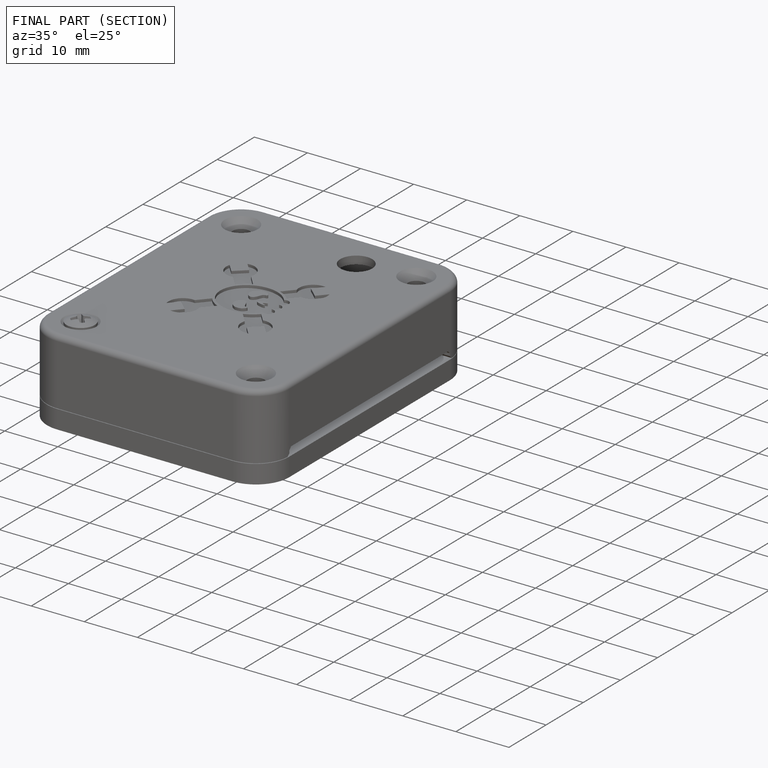
[diagram: finished part — half-section view (interior)]
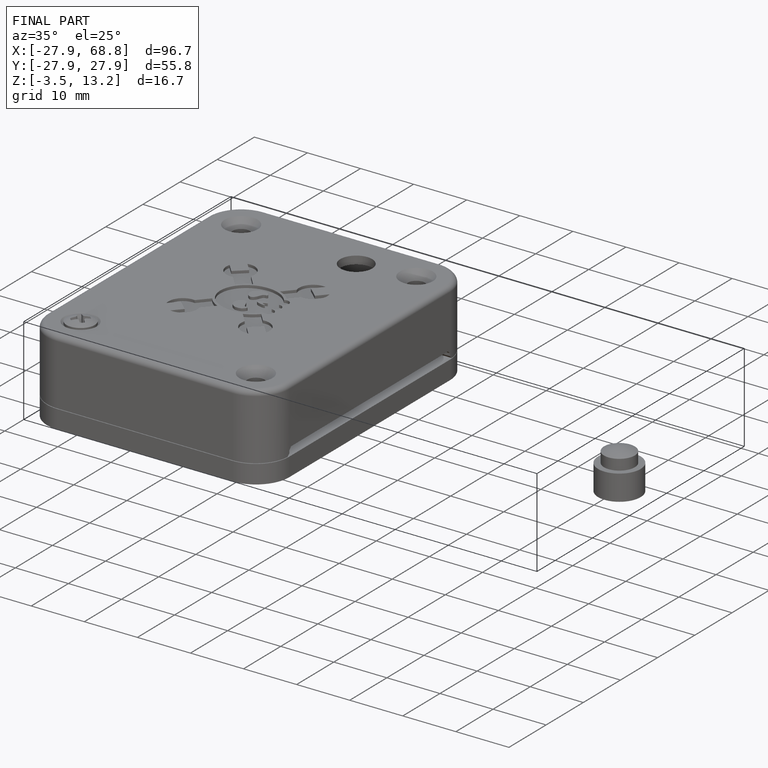
[diagram: finished part — iso view with bounding-box wireframe]
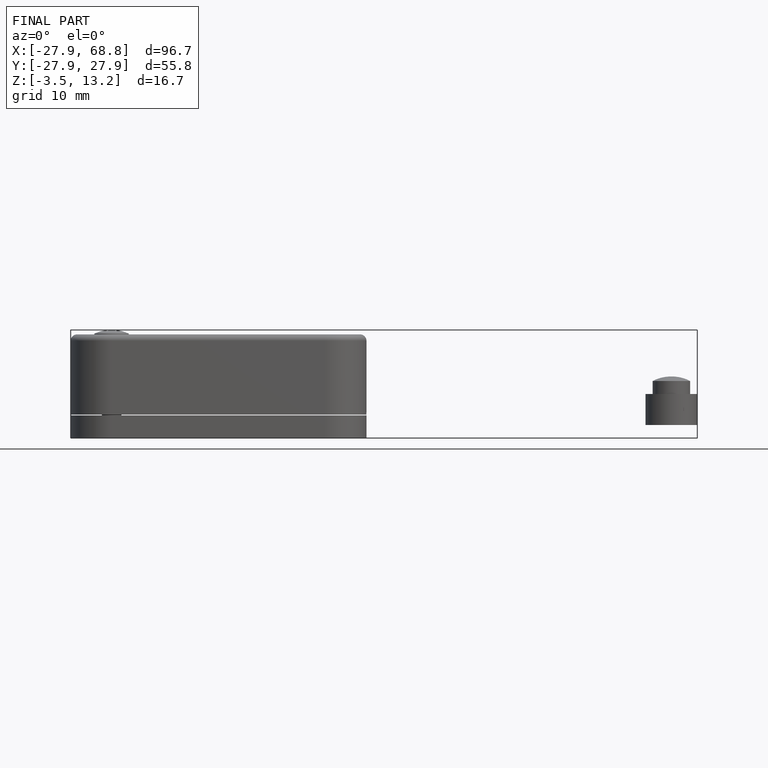
[diagram: finished part — front view with bounding-box wireframe]
